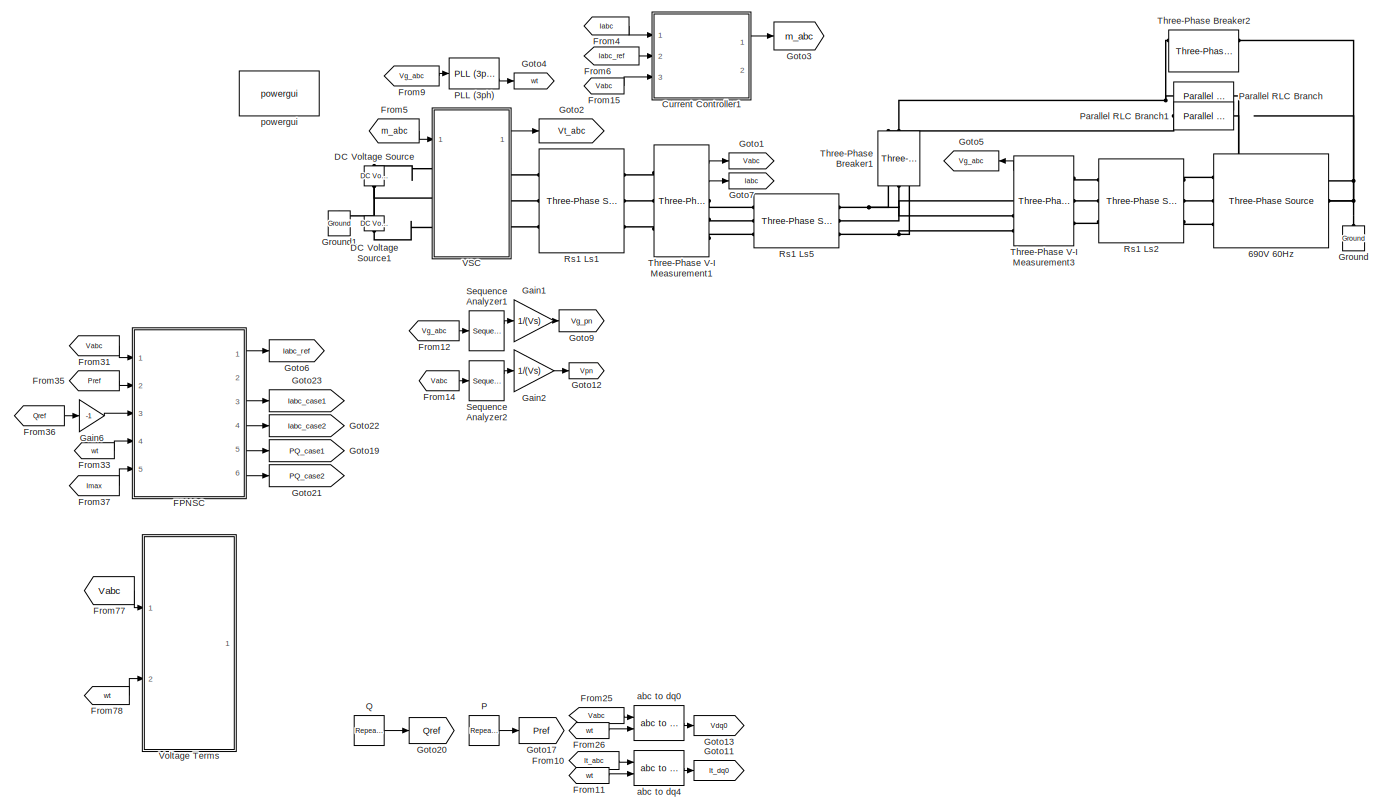
[diagram: root canvas - part 1/1, most of the canvas]
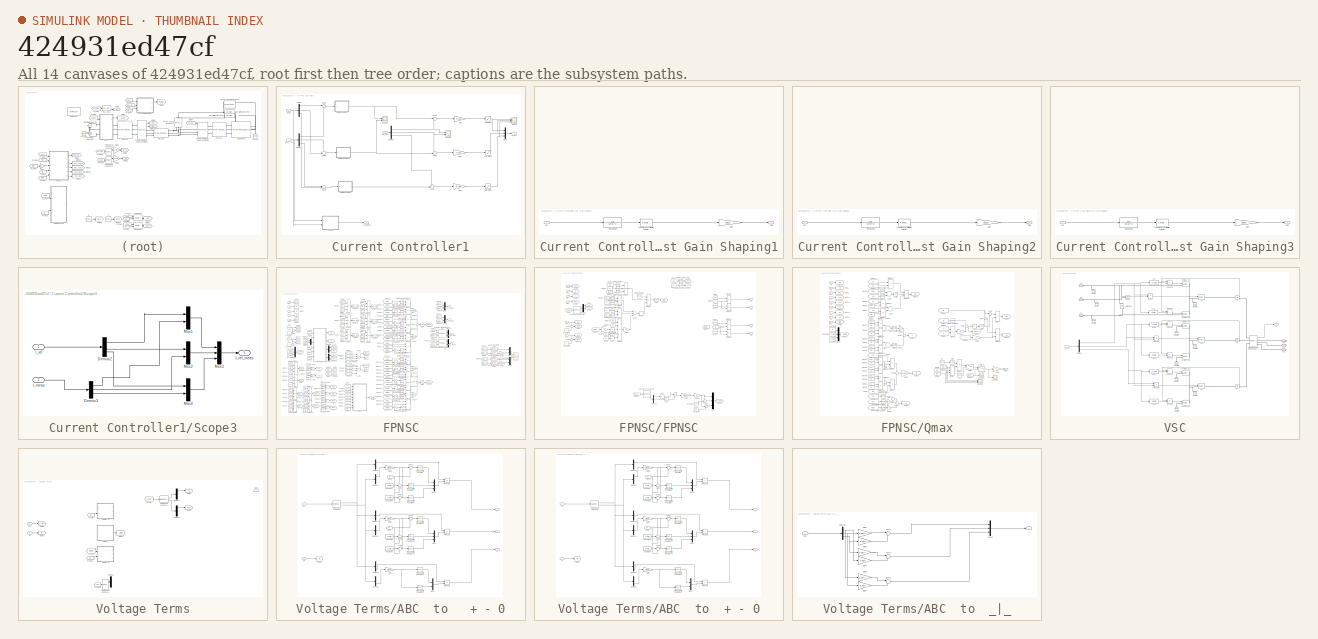
[diagram: thumbnail index - all 14 canvases of the model, root first then tree order]
MODEL slx_424931ed47cf
KIND model
CONFIG InitFcn = t_Pref1=0.07; Pref1=10e5;\nt_Pref2=0.3;   Pref2=3e5;\n\nt_Qmax1=.12; t_Qmax2=t_Qmax1+.01;\nt_Qref1=0.09; Qref1=7e5;\nt_Qref2=0.5; Qref2=10e5;\n\nt_Imax1=.2; Imax1=1200;\nt_Imax2=.4; Imax2=1500;\n\nt_k1=0.25; k1=.8;\nt_k2=0.35; k2=.2;\nt_h1=0.45; h1=.9;\nt_h2=0.55; h2=.5;\n\nLg=90e-6;\nl=100e-6; r=2e-3;\ntff=10e-6;\nw=2*pi*60;\nz_lead =966.3602;\np_lead =5.6324e+03;\nVdc=10000;\nVs=690;
CONFIG PreLoadFcn = t1=1;
BLOCK [Reference] 690V 60Hz  REF=powerlib/Electrical
Sources/Three-Phase Source
  BaseVoltage = 25e3
  BusType = swing
  Frequency = 60
  Inductance = 1e-10
  InternalConnection = Yn
  PhaseAngle = 0
  Ports = [0, 0, 0, 0, 0, 1, 3]
  Pref = 0
  Qmax = inf
  Qmin = -inf
  Qref = 0
  Resistance = 2e-10
  ShortCircuitLevel = 100e6
  SourceBlock = powerlib/Electrical\nSources/Three-Phase Source
  SourceType = Three-Phase Source
  SpecifyImpedance = off
  Voltage = Vs*sqrt(3)/sqrt(2)
  XRratio = 7
BLOCK [SubSystem] Current Controller1
  Ports = [3, 2]
  RequestExecContextInheritance = off
BLOCK [SubSystem] Current Controller1/1st Gain Shaping1
  Ports = [1, 1]
  RequestExecContextInheritance = off
BLOCK [Gain] Current Controller1/1st Gain Shaping1/Gain
  Gain = 38019
  OutDataTypeStr = Inherit: Inherit via internal rule
  ParamDataTypeStr = Inherit: Inherit via internal rule
  SaturateOnIntegerOverflow = off
BLOCK [Inport] Current Controller1/1st Gain Shaping1/In1
  IconDisplay = Port number
BLOCK [Outport] Current Controller1/1st Gain Shaping1/Out1
  IconDisplay = Port number
BLOCK [TransferFcn] Current Controller1/1st Gain Shaping1/Resonant1
  Denominator = [1 0 (w)^2]
  Numerator = [1 r/l]
BLOCK [Reference] Current Controller1/1st Gain Shaping1/Transfer Fcn (with initial outputs)  REF=simulink_extras/Additional
Linear/Transfer Fcn
(with initial outputs)
  D = [1 30340]
  N = [1 5205]
  Ports = [1, 1]
  SourceBlock = simulink_extras/Additional\nLinear/Transfer Fcn\n(with initial outputs)
  SourceType = Transfer Function with Initial Outputs
  U0 = 0
  Y0 = 0
BLOCK [SubSystem] Current Controller1/1st Gain Shaping2
  Ports = [1, 1]
  RequestExecContextInheritance = off
BLOCK [Gain] Current Controller1/1st Gain Shaping2/Gain
  Gain = 38019
  OutDataTypeStr = Inherit: Inherit via internal rule
  ParamDataTypeStr = Inherit: Inherit via internal rule
  SaturateOnIntegerOverflow = off
BLOCK [Inport] Current Controller1/1st Gain Shaping2/In1
  IconDisplay = Port number
BLOCK [Outport] Current Controller1/1st Gain Shaping2/Out1
  IconDisplay = Port number
BLOCK [TransferFcn] Current Controller1/1st Gain Shaping2/Resonant1
  Denominator = [1 0 (w)^2]
  Numerator = [1 r/l]
BLOCK [Reference] Current Controller1/1st Gain Shaping2/Transfer Fcn (with initial outputs)  REF=simulink_extras/Additional
Linear/Transfer Fcn
(with initial outputs)
  D = [1 30340]
  N = [1 5205]
  Ports = [1, 1]
  SourceBlock = simulink_extras/Additional\nLinear/Transfer Fcn\n(with initial outputs)
  SourceType = Transfer Function with Initial Outputs
  U0 = 0
  Y0 = 0
BLOCK [SubSystem] Current Controller1/1st Gain Shaping3
  Ports = [1, 1]
  RequestExecContextInheritance = off
BLOCK [Gain] Current Controller1/1st Gain Shaping3/Gain
  Gain = 38019
  OutDataTypeStr = Inherit: Inherit via internal rule
  ParamDataTypeStr = Inherit: Inherit via internal rule
  SaturateOnIntegerOverflow = off
BLOCK [Inport] Current Controller1/1st Gain Shaping3/In1
  IconDisplay = Port number
BLOCK [Outport] Current Controller1/1st Gain Shaping3/Out1
  IconDisplay = Port number
BLOCK [TransferFcn] Current Controller1/1st Gain Shaping3/Resonant1
  Denominator = [1 0 (w)^2]
  Numerator = [1 r/l]
BLOCK [Reference] Current Controller1/1st Gain Shaping3/Transfer Fcn (with initial outputs)  REF=simulink_extras/Additional
Linear/Transfer Fcn
(with initial outputs)
  D = [1 30340]
  N = [1 5205]
  Ports = [1, 1]
  SourceBlock = simulink_extras/Additional\nLinear/Transfer Fcn\n(with initial outputs)
  SourceType = Transfer Function with Initial Outputs
  U0 = 0
  Y0 = 0
BLOCK [Demux] Current Controller1/Demux
  DisplayOption = bar
  Outputs = 3
  Ports = [1, 3]
BLOCK [Demux] Current Controller1/Demux1
  DisplayOption = bar
  Outputs = 3
  Ports = [1, 3]
BLOCK [Demux] Current Controller1/Demux2
  DisplayOption = bar
  Outputs = 3
  Ports = [1, 3]
BLOCK [Gain] Current Controller1/Gain
  Gain = 2/Vdc
  OutDataTypeStr = Inherit: Inherit via internal rule
  ParamDataTypeStr = Inherit: Inherit via internal rule
  SaturateOnIntegerOverflow = off
BLOCK [Gain] Current Controller1/Gain1
  Gain = 2/Vdc
  OutDataTypeStr = Inherit: Inherit via internal rule
  ParamDataTypeStr = Inherit: Inherit via internal rule
  SaturateOnIntegerOverflow = off
BLOCK [Gain] Current Controller1/Gain2
  Gain = 2/Vdc
  OutDataTypeStr = Inherit: Inherit via internal rule
  ParamDataTypeStr = Inherit: Inherit via internal rule
  SaturateOnIntegerOverflow = off
BLOCK [Outport] Current Controller1/I_ref_meas
  IconDisplay = Port number
  Port = 2
BLOCK [Inport] Current Controller1/It_abc
  IconDisplay = Port number
BLOCK [Inport] Current Controller1/It_abc_ref
  IconDisplay = Port number
  Port = 2
BLOCK [Mux] Current Controller1/Mux2
  DisplayOption = bar
  Inputs = 3
  Ports = [3, 1]
BLOCK [Saturate] Current Controller1/Saturation
  InputPortMap = u0
  LowerLimit = -1
  Ports = [1, 1]
  UpperLimit = 1
BLOCK [Saturate] Current Controller1/Saturation1
  InputPortMap = u0
  LowerLimit = -1
  Ports = [1, 1]
  UpperLimit = 1
BLOCK [Saturate] Current Controller1/Saturation2
  InputPortMap = u0
  LowerLimit = -1
  Ports = [1, 1]
  UpperLimit = 1
BLOCK [Scope] Current Controller1/Scope
  DataFormat = StructureWithTime
  Decimation = 3
  Floating = off
  LimitDataPoints = off
  NumInputPorts = 3
  Ports = [3]
  SampleTime = 0
  SaveName = ScopeData4
  ShowLegends = off
  YMax = 0.8~0.75~1
  YMin = -0.7~-1~-0.75
  ZoomMode = xonly
BLOCK [Scope] Current Controller1/Scope1
  DataFormat = StructureWithTime
  Decimation = 3
  Floating = off
  LimitDataPoints = off
  NumInputPorts = 2
  Ports = [2]
  SampleTime = 0
  SaveName = ScopeData3
  ShowLegends = off
  YMax = 400~600
  YMin = -1600~-200
  ZoomMode = xonly
BLOCK [Scope] Current Controller1/Scope2
  DataFormat = StructureWithTime
  Decimation = 3
  Floating = off
  LimitDataPoints = off
  NumInputPorts = 2
  Ports = [2]
  SampleTime = 0
  SaveName = ScopeData5
  ShowLegends = off
  YMax = 400~400
  YMin = -400~-450
  ZoomMode = xonly
BLOCK [SubSystem] Current Controller1/Scope3
  Ports = [2, 1]
  RequestExecContextInheritance = off
BLOCK [Demux] Current Controller1/Scope3/Demux2
  DisplayOption = bar
  Outputs = 3
  Ports = [1, 3]
BLOCK [Demux] Current Controller1/Scope3/Demux3
  DisplayOption = bar
  Outputs = 3
  Ports = [1, 3]
BLOCK [Inport] Current Controller1/Scope3/I_meas
  IconDisplay = Port number
  Port = 2
BLOCK [Inport] Current Controller1/Scope3/I_ref
  IconDisplay = Port number
BLOCK [Outport] Current Controller1/Scope3/I_ref_meas
  IconDisplay = Port number
BLOCK [Mux] Current Controller1/Scope3/Mux1
  DisplayOption = bar
  Inputs = 2
  Ports = [2, 1]
BLOCK [Mux] Current Controller1/Scope3/Mux2
  DisplayOption = bar
  Inputs = 2
  Ports = [2, 1]
BLOCK [Mux] Current Controller1/Scope3/Mux3
  DisplayOption = bar
  Inputs = 3
  Ports = [3, 1]
BLOCK [Mux] Current Controller1/Scope3/Mux4
  DisplayOption = bar
  Inputs = 2
  Ports = [2, 1]
BLOCK [Sum] Current Controller1/Sum1
  IconShape = round
  InputSameDT = off
  Inputs = +-|
  OutDataTypeStr = Inherit: Inherit via internal rule
  Ports = [2, 1]
  SaturateOnIntegerOverflow = off
BLOCK [Sum] Current Controller1/Sum2
  IconShape = round
  InputSameDT = off
  Inputs = ++|
  OutDataTypeStr = Inherit: Inherit via internal rule
  Ports = [2, 1]
  SaturateOnIntegerOverflow = off
BLOCK [Sum] Current Controller1/Sum4
  IconShape = round
  InputSameDT = off
  Inputs = |-+
  OutDataTypeStr = Inherit: Inherit via internal rule
  Ports = [2, 1]
  SaturateOnIntegerOverflow = off
BLOCK [Sum] Current Controller1/Sum6
  IconShape = round
  InputSameDT = off
  Inputs = +-|
  OutDataTypeStr = Inherit: Inherit via internal rule
  Ports = [2, 1]
  SaturateOnIntegerOverflow = off
BLOCK [Sum] Current Controller1/Sum8
  IconShape = round
  InputSameDT = off
  Inputs = |++
  OutDataTypeStr = Inherit: Inherit via internal rule
  Ports = [2, 1]
  SaturateOnIntegerOverflow = off
BLOCK [Sum] Current Controller1/Sum9
  IconShape = round
  InputSameDT = off
  Inputs = ++|
  OutDataTypeStr = Inherit: Inherit via internal rule
  Ports = [2, 1]
  SaturateOnIntegerOverflow = off
BLOCK [Inport] Current Controller1/Vs_abc
  IconDisplay = Port number
  Port = 3
BLOCK [Outport] Current Controller1/m_abc
  IconDisplay = Port number
BLOCK [Reference] DC Voltage Source  REF=powerlib/Electrical
Sources/DC Voltage Source
  Amplitude = Vdc/2
  Measurements = None
  Ports = [0, 0, 0, 0, 0, 1, 1]
  SourceBlock = powerlib/Electrical\nSources/DC Voltage Source
  SourceType = DC Voltage Source
BLOCK [Reference] DC Voltage Source1  REF=powerlib/Electrical
Sources/DC Voltage Source
  Amplitude = Vdc/2
  Measurements = None
  Ports = [0, 0, 0, 0, 0, 1, 1]
  SourceBlock = powerlib/Electrical\nSources/DC Voltage Source
  SourceType = DC Voltage Source
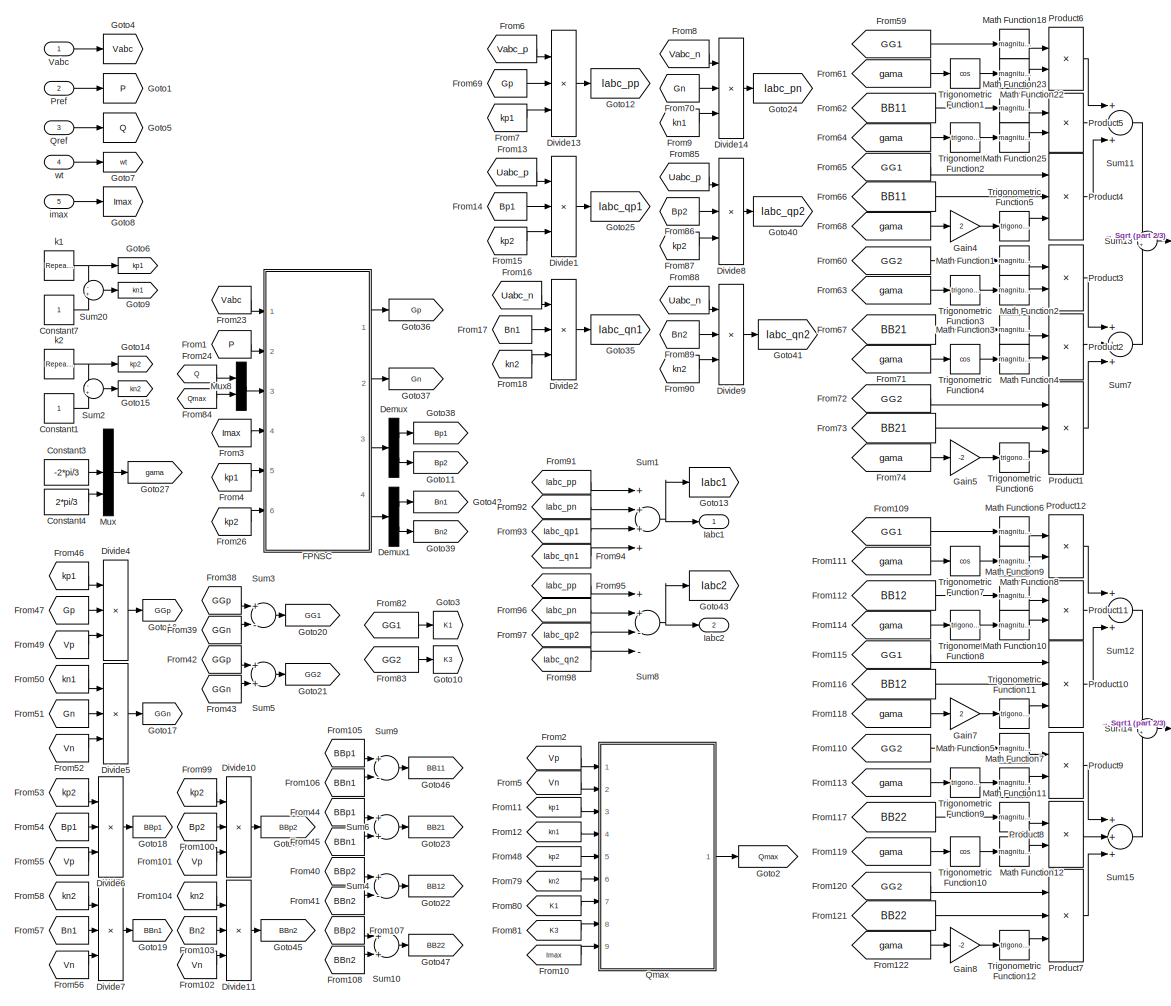
[diagram: FPNSC - part 1/3, left side, full height]
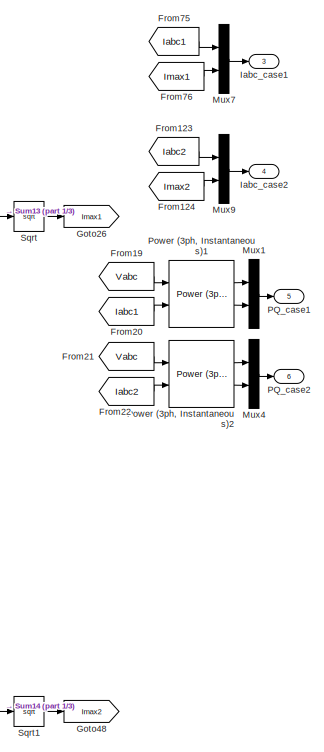
[diagram: FPNSC - part 2/3, central region]
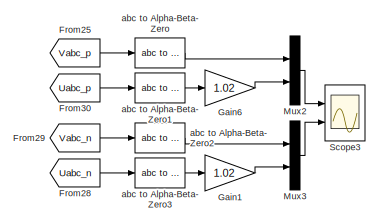
[diagram: FPNSC - part 3/3, middle right region]
BLOCK [SubSystem] FPNSC
  Ports = [5, 6]
  RequestExecContextInheritance = off
BLOCK [Constant] FPNSC/Constant1
BLOCK [Constant] FPNSC/Constant3
  Value = -2*pi/3
BLOCK [Constant] FPNSC/Constant4
  Value = 2*pi/3
BLOCK [Constant] FPNSC/Constant7
BLOCK [Demux] FPNSC/Demux
  DisplayOption = bar
  Outputs = 2
  Ports = [1, 2]
BLOCK [Demux] FPNSC/Demux1
  DisplayOption = bar
  Outputs = 2
  Ports = [1, 2]
BLOCK [Product] FPNSC/Divide1
  InputSameDT = off
  Inputs = ***
  OutDataTypeStr = Inherit: Inherit via internal rule
  Ports = [3, 1]
  RndMeth = Floor
  SaturateOnIntegerOverflow = off
BLOCK [Product] FPNSC/Divide10
  InputSameDT = off
  Inputs = ***
  OutDataTypeStr = Inherit: Inherit via internal rule
  Ports = [3, 1]
  RndMeth = Floor
  SaturateOnIntegerOverflow = off
BLOCK [Product] FPNSC/Divide11
  InputSameDT = off
  Inputs = ***
  OutDataTypeStr = Inherit: Inherit via internal rule
  Ports = [3, 1]
  RndMeth = Floor
  SaturateOnIntegerOverflow = off
BLOCK [Product] FPNSC/Divide13
  InputSameDT = off
  Inputs = ***
  OutDataTypeStr = Inherit: Inherit via internal rule
  Ports = [3, 1]
  RndMeth = Floor
  SaturateOnIntegerOverflow = off
BLOCK [Product] FPNSC/Divide14
  InputSameDT = off
  Inputs = ***
  OutDataTypeStr = Inherit: Inherit via internal rule
  Ports = [3, 1]
  RndMeth = Floor
  SaturateOnIntegerOverflow = off
BLOCK [Product] FPNSC/Divide2
  InputSameDT = off
  Inputs = ***
  OutDataTypeStr = Inherit: Inherit via internal rule
  Ports = [3, 1]
  RndMeth = Floor
  SaturateOnIntegerOverflow = off
BLOCK [Product] FPNSC/Divide4
  InputSameDT = off
  Inputs = ***
  OutDataTypeStr = Inherit: Inherit via internal rule
  Ports = [3, 1]
  RndMeth = Floor
  SaturateOnIntegerOverflow = off
BLOCK [Product] FPNSC/Divide5
  InputSameDT = off
  Inputs = ***
  OutDataTypeStr = Inherit: Inherit via internal rule
  Ports = [3, 1]
  RndMeth = Floor
  SaturateOnIntegerOverflow = off
BLOCK [Product] FPNSC/Divide6
  InputSameDT = off
  Inputs = ***
  OutDataTypeStr = Inherit: Inherit via internal rule
  Ports = [3, 1]
  RndMeth = Floor
  SaturateOnIntegerOverflow = off
BLOCK [Product] FPNSC/Divide7
  InputSameDT = off
  Inputs = ***
  OutDataTypeStr = Inherit: Inherit via internal rule
  Ports = [3, 1]
  RndMeth = Floor
  SaturateOnIntegerOverflow = off
BLOCK [Product] FPNSC/Divide8
  InputSameDT = off
  Inputs = ***
  OutDataTypeStr = Inherit: Inherit via internal rule
  Ports = [3, 1]
  RndMeth = Floor
  SaturateOnIntegerOverflow = off
BLOCK [Product] FPNSC/Divide9
  InputSameDT = off
  Inputs = ***
  OutDataTypeStr = Inherit: Inherit via internal rule
  Ports = [3, 1]
  RndMeth = Floor
  SaturateOnIntegerOverflow = off
BLOCK [SubSystem] FPNSC/FPNSC
  Ports = [6, 4]
  RequestExecContextInheritance = off
BLOCK [Abs] FPNSC/FPNSC/Abs
  SaturateOnIntegerOverflow = off
BLOCK [Abs] FPNSC/FPNSC/Abs1
  SaturateOnIntegerOverflow = off
BLOCK [Abs] FPNSC/FPNSC/Abs2
  SaturateOnIntegerOverflow = off
BLOCK [Abs] FPNSC/FPNSC/Abs3
  SaturateOnIntegerOverflow = off
BLOCK [Outport] FPNSC/FPNSC/Bn
  IconDisplay = Port number
  Port = 4
BLOCK [Outport] FPNSC/FPNSC/Bp
  IconDisplay = Port number
  Port = 3
BLOCK [Constant] FPNSC/FPNSC/Constant1
BLOCK [Constant] FPNSC/FPNSC/Constant2
BLOCK [Constant] FPNSC/FPNSC/Constant3
  Value = pi/3
BLOCK [Constant] FPNSC/FPNSC/Constant4
  Value = pi/3
BLOCK [Demux] FPNSC/FPNSC/Demux2
  DisplayOption = bar
  Outputs = 3
  Ports = [1, 3]
BLOCK [Demux] FPNSC/FPNSC/Demux3
  DisplayOption = bar
  Outputs = 3
  Ports = [1, 3]
BLOCK [Product] FPNSC/FPNSC/Divide10
  InputSameDT = off
  Inputs = /*
  OutDataTypeStr = Inherit: Inherit via internal rule
  Ports = [2, 1]
  RndMeth = Floor
  SaturateOnIntegerOverflow = off
BLOCK [Product] FPNSC/FPNSC/Divide11
  InputSameDT = off
  Inputs = /*
  OutDataTypeStr = Inherit: Inherit via internal rule
  Ports = [2, 1]
  RndMeth = Floor
  SaturateOnIntegerOverflow = off
BLOCK [Product] FPNSC/FPNSC/Divide12
  InputSameDT = off
  Inputs = /*
  OutDataTypeStr = Inherit: Inherit via internal rule
  Ports = [2, 1]
  RndMeth = Floor
  SaturateOnIntegerOverflow = off
BLOCK [Product] FPNSC/FPNSC/Divide3
  InputSameDT = off
  Inputs = ***
  OutDataTypeStr = Inherit: Inherit via internal rule
  Ports = [3, 1]
  RndMeth = Floor
  SaturateOnIntegerOverflow = off
BLOCK [Product] FPNSC/FPNSC/Divide4
  InputSameDT = off
  Inputs = **/
  OutDataTypeStr = Inherit: Inherit via internal rule
  Ports = [3, 1]
  RndMeth = Floor
  SaturateOnIntegerOverflow = off
BLOCK [Product] FPNSC/FPNSC/Divide6
  InputSameDT = off
  Inputs = **
  OutDataTypeStr = Inherit: Inherit via internal rule
  Ports = [2, 1]
  RndMeth = Floor
  SaturateOnIntegerOverflow = off
BLOCK [Product] FPNSC/FPNSC/Divide7
  InputSameDT = off
  Inputs = **
  OutDataTypeStr = Inherit: Inherit via internal rule
  Ports = [2, 1]
  RndMeth = Floor
  SaturateOnIntegerOverflow = off
BLOCK [Product] FPNSC/FPNSC/Divide8
  InputSameDT = off
  Inputs = *****
  OutDataTypeStr = Inherit: Inherit via internal rule
  Ports = [5, 1]
  RndMeth = Floor
  SaturateOnIntegerOverflow = off
BLOCK [Product] FPNSC/FPNSC/Divide9
  InputSameDT = off
  Inputs = /*
  OutDataTypeStr = Inherit: Inherit via internal rule
  Ports = [2, 1]
  RndMeth = Floor
  SaturateOnIntegerOverflow = off
BLOCK [From] FPNSC/FPNSC/From1
  GotoTag = Vp2
BLOCK [From] FPNSC/FPNSC/From10
  GotoTag = Q
BLOCK [From] FPNSC/FPNSC/From11
  GotoTag = Vp
BLOCK [From] FPNSC/FPNSC/From12
  GotoTag = Vn
BLOCK [From] FPNSC/FPNSC/From13
  GotoTag = Vabc
BLOCK [From] FPNSC/FPNSC/From14
  GotoTag = Vp
BLOCK [From] FPNSC/FPNSC/From15
  GotoTag = Vn
BLOCK [From] FPNSC/FPNSC/From16
  GotoTag = Imax
BLOCK [From] FPNSC/FPNSC/From17
  GotoTag = Vn2
BLOCK [From] FPNSC/FPNSC/From18
  GotoTag = Kp
BLOCK [From] FPNSC/FPNSC/From19
  GotoTag = Kn
BLOCK [From] FPNSC/FPNSC/From2
  GotoTag = Vp
BLOCK [From] FPNSC/FPNSC/From20
  GotoTag = Kp
BLOCK [From] FPNSC/FPNSC/From21
  GotoTag = Kn
BLOCK [From] FPNSC/FPNSC/From22
  GotoTag = Vp2
BLOCK [From] FPNSC/FPNSC/From23
  GotoTag = Vn2
BLOCK [From] FPNSC/FPNSC/From3
  GotoTag = Vn
BLOCK [From] FPNSC/FPNSC/From4
  GotoTag = gama
BLOCK [From] FPNSC/FPNSC/From5
  GotoTag = Vn
BLOCK [From] FPNSC/FPNSC/From6
  GotoTag = Vp
BLOCK [From] FPNSC/FPNSC/From7
  GotoTag = Qmax
BLOCK [From] FPNSC/FPNSC/From8
  GotoTag = Vabc
BLOCK [From] FPNSC/FPNSC/From9
  GotoTag = P
BLOCK [Gain] FPNSC/FPNSC/Gain3
  Gain = pi/180
  OutDataTypeStr = Inherit: Inherit via internal rule
  ParamDataTypeStr = Inherit: Inherit via internal rule
  SaturateOnIntegerOverflow = off
BLOCK [Gain] FPNSC/FPNSC/Gain4
  Gain = .5
  OutDataTypeStr = Inherit: Inherit via internal rule
  ParamDataTypeStr = Inherit: Inherit via internal rule
  SaturateOnIntegerOverflow = off
BLOCK [Gain] FPNSC/FPNSC/Gain5
  Gain = 2
  OutDataTypeStr = Inherit: Inherit via internal rule
  ParamDataTypeStr = Inherit: Inherit via internal rule
  SaturateOnIntegerOverflow = off
BLOCK [Gain] FPNSC/FPNSC/Gain6
  Gain = -2
  OutDataTypeStr = Inherit: Inherit via internal rule
  ParamDataTypeStr = Inherit: Inherit via internal rule
  SaturateOnIntegerOverflow = off
BLOCK [Outport] FPNSC/FPNSC/Gn
  IconDisplay = Port number
  Port = 2
BLOCK [Goto] FPNSC/FPNSC/Goto1
  GotoTag = Vp2
BLOCK [Goto] FPNSC/FPNSC/Goto10
  GotoTag = Qmax
BLOCK [Goto] FPNSC/FPNSC/Goto11
  GotoTag = P
BLOCK [Goto] FPNSC/FPNSC/Goto12
  GotoTag = gama
BLOCK [Goto] FPNSC/FPNSC/Goto13
  GotoTag = Kp2
BLOCK [Goto] FPNSC/FPNSC/Goto14
  GotoTag = Kn2
BLOCK [Goto] FPNSC/FPNSC/Goto2
  GotoTag = Vn2
BLOCK [Goto] FPNSC/FPNSC/Goto3
  GotoTag = Q
BLOCK [Goto] FPNSC/FPNSC/Goto4
  GotoTag = Vp
BLOCK [Goto] FPNSC/FPNSC/Goto5
  GotoTag = Vn
BLOCK [Goto] FPNSC/FPNSC/Goto6
  GotoTag = Vabc
BLOCK [Goto] FPNSC/FPNSC/Goto7
  GotoTag = Imax
BLOCK [Goto] FPNSC/FPNSC/Goto8
  GotoTag = Kp1
BLOCK [Goto] FPNSC/FPNSC/Goto9
  GotoTag = Kn1
BLOCK [Outport] FPNSC/FPNSC/Gp
  IconDisplay = Port number
BLOCK [Inport] FPNSC/FPNSC/Imax
  IconDisplay = Port number
  Port = 4
BLOCK [Inport] FPNSC/FPNSC/Kp1
  IconDisplay = Port number
  Port = 5
BLOCK [Inport] FPNSC/FPNSC/Kp2
  IconDisplay = Port number
  Port = 6
BLOCK [Math] FPNSC/FPNSC/Math Function10
  Operator = magnitude^2
  Ports = [1, 1]
BLOCK [Math] FPNSC/FPNSC/Math Function2
  Operator = magnitude^2
  Ports = [1, 1]
BLOCK [Math] FPNSC/FPNSC/Math Function3
  Operator = magnitude^2
  Ports = [1, 1]
BLOCK [Math] FPNSC/FPNSC/Math Function4
  Operator = magnitude^2
  Ports = [1, 1]
BLOCK [Math] FPNSC/FPNSC/Math Function5
  Operator = magnitude^2
  Ports = [1, 1]
BLOCK [Math] FPNSC/FPNSC/Math Function6
  Operator = magnitude^2
  Ports = [1, 1]
BLOCK [Math] FPNSC/FPNSC/Math Function7
  Operator = magnitude^2
  Ports = [1, 1]
BLOCK [Math] FPNSC/FPNSC/Math Function8
  Operator = magnitude^2
  Ports = [1, 1]
BLOCK [Math] FPNSC/FPNSC/Math Function9
  Operator = magnitude^2
  Ports = [1, 1]
BLOCK [MinMax] FPNSC/FPNSC/MinMax
  Function = max
  InputSameDT = off
  Ports = [1, 1]
  SaturateOnIntegerOverflow = off
BLOCK [Mux] FPNSC/FPNSC/Mux
  DisplayOption = bar
  Inputs = 3
  Ports = [3, 1]
BLOCK [Inport] FPNSC/FPNSC/Pref
  IconDisplay = Port number
  Port = 2
BLOCK [Reference] FPNSC/FPNSC/Qmax Indicator  REF=simulink/Sources/Repeating
Sequence
  Ports = [0, 1]
  SourceBlock = simulink/Sources/Repeating\nSequence
  SourceType = Repeating table
  rep_seq_t = [0 t_Qmax1 t_Qmax2 10]
  rep_seq_y = [0 0 1 1]
BLOCK [Inport] FPNSC/FPNSC/Qref
  IconDisplay = Port number
  Port = 3
BLOCK [Reference] FPNSC/FPNSC/Sequence Analyzer1  REF=powerlib_meascontrol/Measurements/Sequence Analyzer
  Freq = 60
  InInit = [1, 0]
  Ports = [1, 2]
  SourceBlock = powerlib_meascontrol/Measurements/Sequence Analyzer
  SourceType = Sequence Analyzer
  Ts = 0
  n = 1
  seq = Positive Negative Zero
BLOCK [Reference] FPNSC/FPNSC/Sequence Analyzer2  REF=powerlib_meascontrol/Measurements/Sequence Analyzer
  Freq = 60
  InInit = [1, 0]
  Ports = [1, 2]
  SourceBlock = powerlib_meascontrol/Measurements/Sequence Analyzer
  SourceType = Sequence Analyzer
  Ts = 0
  n = 1
  seq = Positive Negative Zero
BLOCK [Sqrt] FPNSC/FPNSC/Sqrt
BLOCK [Sum] FPNSC/FPNSC/Sum1
  IconShape = round
  InputSameDT = off
  Inputs = -+
  OutDataTypeStr = Inherit: Inherit via internal rule
  Ports = [2, 1]
  SaturateOnIntegerOverflow = off
BLOCK [Sum] FPNSC/FPNSC/Sum2
  IconShape = round
  InputSameDT = off
  Inputs = -+
  OutDataTypeStr = Inherit: Inherit via internal rule
  Ports = [2, 1]
  SaturateOnIntegerOverflow = off
BLOCK [Sum] FPNSC/FPNSC/Sum3
  InputSameDT = off
  Inputs = +++
  OutDataTypeStr = Inherit: Inherit via internal rule
  Ports = [3, 1]
  SaturateOnIntegerOverflow = off
BLOCK [Sum] FPNSC/FPNSC/Sum5
  IconShape = round
  InputSameDT = off
  Inputs = +-
  OutDataTypeStr = Inherit: Inherit via internal rule
  Ports = [2, 1]
  SaturateOnIntegerOverflow = off
BLOCK [Sum] FPNSC/FPNSC/Sum6
  IconShape = round
  InputSameDT = off
  OutDataTypeStr = Inherit: Inherit via internal rule
  Ports = [2, 1]
  SaturateOnIntegerOverflow = off
BLOCK [Sum] FPNSC/FPNSC/Sum7
  IconShape = round
  InputSameDT = off
  Inputs = +-
  OutDataTypeStr = Inherit: Inherit via internal rule
  Ports = [2, 1]
  SaturateOnIntegerOverflow = off
BLOCK [Trigonometry] FPNSC/FPNSC/Trigonometric Function
  Operator = cos
  Ports = [1, 1]
BLOCK [Inport] FPNSC/FPNSC/Vabc
  IconDisplay = Port number
BLOCK [From] FPNSC/From1
  GotoTag = P
BLOCK [From] FPNSC/From10
  GotoTag = Imax
BLOCK [From] FPNSC/From100
  GotoTag = Bp2
BLOCK [From] FPNSC/From101
  GotoTag = Vp
BLOCK [From] FPNSC/From102
  GotoTag = Vn
BLOCK [From] FPNSC/From103
  GotoTag = Bn2
BLOCK [From] FPNSC/From104
  GotoTag = kn2
BLOCK [From] FPNSC/From105
  GotoTag = BBp1
BLOCK [From] FPNSC/From106
  GotoTag = BBn1
BLOCK [From] FPNSC/From107
  GotoTag = BBp2
BLOCK [From] FPNSC/From108
  GotoTag = BBn2
BLOCK [From] FPNSC/From109
  GotoTag = GG1
BLOCK [From] FPNSC/From11
  GotoTag = kp1
BLOCK [From] FPNSC/From110
  GotoTag = GG2
BLOCK [From] FPNSC/From111
  GotoTag = gama
BLOCK [From] FPNSC/From112
  GotoTag = BB12
BLOCK [From] FPNSC/From113
  GotoTag = gama
BLOCK [From] FPNSC/From114
  GotoTag = gama
BLOCK [From] FPNSC/From115
  GotoTag = GG1
BLOCK [From] FPNSC/From116
  GotoTag = BB12
BLOCK [From] FPNSC/From117
  GotoTag = BB22
BLOCK [From] FPNSC/From118
  GotoTag = gama
BLOCK [From] FPNSC/From119
  GotoTag = gama
BLOCK [From] FPNSC/From12
  GotoTag = kn1
BLOCK [From] FPNSC/From120
  GotoTag = GG2
BLOCK [From] FPNSC/From121
  GotoTag = BB22
BLOCK [From] FPNSC/From122
  GotoTag = gama
BLOCK [From] FPNSC/From123
  GotoTag = Iabc2
BLOCK [From] FPNSC/From124
  GotoTag = Imax2
BLOCK [From] FPNSC/From13
  GotoTag = Uabc_p
BLOCK [From] FPNSC/From14
  GotoTag = Bp1
BLOCK [From] FPNSC/From15
  GotoTag = kp2
BLOCK [From] FPNSC/From16
  GotoTag = Uabc_n
BLOCK [From] FPNSC/From17
  GotoTag = Bn1
BLOCK [From] FPNSC/From18
  GotoTag = kn2
BLOCK [From] FPNSC/From19
  GotoTag = Vabc
BLOCK [From] FPNSC/From2
  GotoTag = Vp
BLOCK [From] FPNSC/From20
  GotoTag = Iabc1
BLOCK [From] FPNSC/From21
  GotoTag = Vabc
BLOCK [From] FPNSC/From22
  GotoTag = Iabc2
BLOCK [From] FPNSC/From23
  GotoTag = Vabc
BLOCK [From] FPNSC/From24
  GotoTag = Q
BLOCK [From] FPNSC/From25
  GotoTag = Vabc_p
BLOCK [From] FPNSC/From26
  GotoTag = kp2
BLOCK [From] FPNSC/From28
  GotoTag = Uabc_n
BLOCK [From] FPNSC/From29
  GotoTag = Vabc_n
BLOCK [From] FPNSC/From3
  GotoTag = Imax
BLOCK [From] FPNSC/From30
  GotoTag = Uabc_p
BLOCK [From] FPNSC/From38
  GotoTag = GGp
BLOCK [From] FPNSC/From39
  GotoTag = GGn
BLOCK [From] FPNSC/From4
  GotoTag = kp1
BLOCK [From] FPNSC/From40
  GotoTag = BBp2
BLOCK [From] FPNSC/From41
  GotoTag = BBn2
BLOCK [From] FPNSC/From42
  GotoTag = GGp
BLOCK [From] FPNSC/From43
  GotoTag = GGn
BLOCK [From] FPNSC/From44
  GotoTag = BBp1
BLOCK [From] FPNSC/From45
  GotoTag = BBn1
BLOCK [From] FPNSC/From46
  GotoTag = kp1
BLOCK [From] FPNSC/From47
  GotoTag = Gp
BLOCK [From] FPNSC/From48
  GotoTag = kp2
BLOCK [From] FPNSC/From49
  GotoTag = Vp
BLOCK [From] FPNSC/From5
  GotoTag = Vn
BLOCK [From] FPNSC/From50
  GotoTag = kn1
BLOCK [From] FPNSC/From51
  GotoTag = Gn
BLOCK [From] FPNSC/From52
  GotoTag = Vn
BLOCK [From] FPNSC/From53
  GotoTag = kp2
BLOCK [From] FPNSC/From54
  GotoTag = Bp1
BLOCK [From] FPNSC/From55
  GotoTag = Vp
BLOCK [From] FPNSC/From56
  GotoTag = Vn
BLOCK [From] FPNSC/From57
  GotoTag = Bn1
BLOCK [From] FPNSC/From58
  GotoTag = kn2
BLOCK [From] FPNSC/From59
  GotoTag = GG1
BLOCK [From] FPNSC/From6
  GotoTag = Vabc_p
BLOCK [From] FPNSC/From60
  GotoTag = GG2
BLOCK [From] FPNSC/From61
  GotoTag = gama
BLOCK [From] FPNSC/From62
  GotoTag = BB11
BLOCK [From] FPNSC/From63
  GotoTag = gama
BLOCK [From] FPNSC/From64
  GotoTag = gama
BLOCK [From] FPNSC/From65
  GotoTag = GG1
BLOCK [From] FPNSC/From66
  GotoTag = BB11
BLOCK [From] FPNSC/From67
  GotoTag = BB21
BLOCK [From] FPNSC/From68
  GotoTag = gama
BLOCK [From] FPNSC/From69
  GotoTag = Gp
BLOCK [From] FPNSC/From7
  GotoTag = kp1
BLOCK [From] FPNSC/From70
  GotoTag = Gn
BLOCK [From] FPNSC/From71
  GotoTag = gama
BLOCK [From] FPNSC/From72
  GotoTag = GG2
BLOCK [From] FPNSC/From73
  GotoTag = BB21
BLOCK [From] FPNSC/From74
  GotoTag = gama
BLOCK [From] FPNSC/From75
  GotoTag = Iabc1
BLOCK [From] FPNSC/From76
  GotoTag = Imax1
BLOCK [From] FPNSC/From79
  GotoTag = kn2
BLOCK [From] FPNSC/From8
  GotoTag = Vabc_n
BLOCK [From] FPNSC/From80
  GotoTag = K1
BLOCK [From] FPNSC/From81
  GotoTag = K3
BLOCK [From] FPNSC/From82
  GotoTag = GG1
BLOCK [From] FPNSC/From83
  GotoTag = GG2
BLOCK [From] FPNSC/From84
  GotoTag = Qmax
BLOCK [From] FPNSC/From85
  GotoTag = Uabc_p
BLOCK [From] FPNSC/From86
  GotoTag = Bp2
BLOCK [From] FPNSC/From87
  GotoTag = kp2
BLOCK [From] FPNSC/From88
  GotoTag = Uabc_n
BLOCK [From] FPNSC/From89
  GotoTag = Bn2
BLOCK [From] FPNSC/From9
  GotoTag = kn1
BLOCK [From] FPNSC/From90
  GotoTag = kn2
BLOCK [From] FPNSC/From91
  GotoTag = Iabc_pp
BLOCK [From] FPNSC/From92
  GotoTag = Iabc_pn
BLOCK [From] FPNSC/From93
  GotoTag = Iabc_qp1
BLOCK [From] FPNSC/From94
  GotoTag = Iabc_qn1
BLOCK [From] FPNSC/From95
  GotoTag = Iabc_pp
BLOCK [From] FPNSC/From96
  GotoTag = Iabc_pn
BLOCK [From] FPNSC/From97
  GotoTag = Iabc_qp2
BLOCK [From] FPNSC/From98
  GotoTag = Iabc_qn2
BLOCK [From] FPNSC/From99
  GotoTag = kp2
BLOCK [Gain] FPNSC/Gain1
  Gain = 1.02
  OutDataTypeStr = Inherit: Inherit via internal rule
  ParamDataTypeStr = Inherit: Inherit via internal rule
  SaturateOnIntegerOverflow = off
BLOCK [Gain] FPNSC/Gain4
  Gain = 2
  OutDataTypeStr = Inherit: Inherit via internal rule
  ParamDataTypeStr = Inherit: Inherit via internal rule
  SaturateOnIntegerOverflow = off
BLOCK [Gain] FPNSC/Gain5
  Gain = -2
  OutDataTypeStr = Inherit: Inherit via internal rule
  ParamDataTypeStr = Inherit: Inherit via internal rule
  SaturateOnIntegerOverflow = off
BLOCK [Gain] FPNSC/Gain6
  Gain = 1.02
  OutDataTypeStr = Inherit: Inherit via internal rule
  ParamDataTypeStr = Inherit: Inherit via internal rule
  SaturateOnIntegerOverflow = off
BLOCK [Gain] FPNSC/Gain7
  Gain = 2
  OutDataTypeStr = Inherit: Inherit via internal rule
  ParamDataTypeStr = Inherit: Inherit via internal rule
  SaturateOnIntegerOverflow = off
BLOCK [Gain] FPNSC/Gain8
  Gain = -2
  OutDataTypeStr = Inherit: Inherit via internal rule
  ParamDataTypeStr = Inherit: Inherit via internal rule
  SaturateOnIntegerOverflow = off
BLOCK [Goto] FPNSC/Goto1
  GotoTag = P
BLOCK [Goto] FPNSC/Goto10
  GotoTag = K3
BLOCK [Goto] FPNSC/Goto11
  GotoTag = Bp2
BLOCK [Goto] FPNSC/Goto12
  GotoTag = Iabc_pp
BLOCK [Goto] FPNSC/Goto13
  GotoTag = Iabc1
BLOCK [Goto] FPNSC/Goto14
  GotoTag = kp2
BLOCK [Goto] FPNSC/Goto15
  GotoTag = kn2
BLOCK [Goto] FPNSC/Goto16
  GotoTag = GGp
BLOCK [Goto] FPNSC/Goto17
  GotoTag = GGn
BLOCK [Goto] FPNSC/Goto18
  GotoTag = BBp1
BLOCK [Goto] FPNSC/Goto19
  GotoTag = BBn1
BLOCK [Goto] FPNSC/Goto2
  GotoTag = Qmax
BLOCK [Goto] FPNSC/Goto20
  GotoTag = GG1
BLOCK [Goto] FPNSC/Goto21
  GotoTag = GG2
BLOCK [Goto] FPNSC/Goto22
  GotoTag = BB12
BLOCK [Goto] FPNSC/Goto23
  GotoTag = BB21
BLOCK [Goto] FPNSC/Goto24
  GotoTag = Iabc_pn
BLOCK [Goto] FPNSC/Goto25
  GotoTag = Iabc_qp1
BLOCK [Goto] FPNSC/Goto26
  GotoTag = Imax1
BLOCK [Goto] FPNSC/Goto27
  GotoTag = gama
BLOCK [Goto] FPNSC/Goto3
  GotoTag = K1
BLOCK [Goto] FPNSC/Goto35
  GotoTag = Iabc_qn1
BLOCK [Goto] FPNSC/Goto36
  GotoTag = Gp
BLOCK [Goto] FPNSC/Goto37
  GotoTag = Gn
BLOCK [Goto] FPNSC/Goto38
  GotoTag = Bp1
BLOCK [Goto] FPNSC/Goto39
  GotoTag = Bn2
BLOCK [Goto] FPNSC/Goto4
  GotoTag = Vabc
BLOCK [Goto] FPNSC/Goto40
  GotoTag = Iabc_qp2
BLOCK [Goto] FPNSC/Goto41
  GotoTag = Iabc_qn2
BLOCK [Goto] FPNSC/Goto42
  GotoTag = Bn1
BLOCK [Goto] FPNSC/Goto43
  GotoTag = Iabc2
BLOCK [Goto] FPNSC/Goto44
  GotoTag = BBp2
BLOCK [Goto] FPNSC/Goto45
  GotoTag = BBn2
BLOCK [Goto] FPNSC/Goto46
  GotoTag = BB11
BLOCK [Goto] FPNSC/Goto47
  GotoTag = BB22
BLOCK [Goto] FPNSC/Goto48
  GotoTag = Imax2
BLOCK [Goto] FPNSC/Goto5
  GotoTag = Q
BLOCK [Goto] FPNSC/Goto6
  GotoTag = kp1
BLOCK [Goto] FPNSC/Goto7
  GotoTag = wt
BLOCK [Goto] FPNSC/Goto8
  GotoTag = Imax
BLOCK [Goto] FPNSC/Goto9
  GotoTag = kn1
BLOCK [Outport] FPNSC/Iabc1
  IconDisplay = Port number
BLOCK [Outport] FPNSC/Iabc2
  IconDisplay = Port number
  Port = 2
BLOCK [Outport] FPNSC/Iabc_case1
  IconDisplay = Port number
  Port = 3
BLOCK [Outport] FPNSC/Iabc_case2
  IconDisplay = Port number
  Port = 4
BLOCK [Math] FPNSC/Math Function1
  Operator = magnitude^2
  Ports = [1, 1]
BLOCK [Math] FPNSC/Math Function10
  Operator = magnitude^2
  Ports = [1, 1]
BLOCK [Math] FPNSC/Math Function11
  Operator = magnitude^2
  Ports = [1, 1]
BLOCK [Math] FPNSC/Math Function12
  Operator = magnitude^2
  Ports = [1, 1]
BLOCK [Math] FPNSC/Math Function18
  Operator = magnitude^2
  Ports = [1, 1]
BLOCK [Math] FPNSC/Math Function2
  Operator = magnitude^2
  Ports = [1, 1]
BLOCK [Math] FPNSC/Math Function22
  Operator = magnitude^2
  Ports = [1, 1]
BLOCK [Math] FPNSC/Math Function23
  Operator = magnitude^2
  Ports = [1, 1]
BLOCK [Math] FPNSC/Math Function25
  Operator = magnitude^2
  Ports = [1, 1]
BLOCK [Math] FPNSC/Math Function3
  Operator = magnitude^2
  Ports = [1, 1]
BLOCK [Math] FPNSC/Math Function4
  Operator = magnitude^2
  Ports = [1, 1]
BLOCK [Math] FPNSC/Math Function5
  Operator = magnitude^2
  Ports = [1, 1]
BLOCK [Math] FPNSC/Math Function6
  Operator = magnitude^2
  Ports = [1, 1]
BLOCK [Math] FPNSC/Math Function7
  Operator = magnitude^2
  Ports = [1, 1]
BLOCK [Math] FPNSC/Math Function8
  Operator = magnitude^2
  Ports = [1, 1]
BLOCK [Math] FPNSC/Math Function9
  Operator = magnitude^2
  Ports = [1, 1]
BLOCK [Mux] FPNSC/Mux
  DisplayOption = bar
  Inputs = 3
  Ports = [3, 1]
BLOCK [Mux] FPNSC/Mux1
  DisplayOption = bar
  Inputs = 2
  Ports = [2, 1]
BLOCK [Mux] FPNSC/Mux2
  DisplayOption = bar
  Inputs = 2
  Ports = [2, 1]
BLOCK [Mux] FPNSC/Mux3
  DisplayOption = bar
  Inputs = 2
  Ports = [2, 1]
BLOCK [Mux] FPNSC/Mux4
  DisplayOption = bar
  Inputs = 2
  Ports = [2, 1]
BLOCK [Mux] FPNSC/Mux7
  DisplayOption = bar
  Inputs = 2
  Ports = [2, 1]
BLOCK [Mux] FPNSC/Mux8
  DisplayOption = bar
  Inputs = 2
  Ports = [2, 1]
BLOCK [Mux] FPNSC/Mux9
  DisplayOption = bar
  Inputs = 2
  Ports = [2, 1]
BLOCK [Outport] FPNSC/PQ_case1
  IconDisplay = Port number
  Port = 5
BLOCK [Outport] FPNSC/PQ_case2
  IconDisplay = Port number
  Port = 6
BLOCK [Reference] FPNSC/Power (3ph, Instantaneous)1  REF=powerlib_meascontrol/Measurements/Power
(3ph, Instantaneous)
  Ports = [2, 2]
  SourceBlock = powerlib_meascontrol/Measurements/Power\n(3ph, Instantaneous)
  SourceType = Power (3ph, Instantaneous)
BLOCK [Reference] FPNSC/Power (3ph, Instantaneous)2  REF=powerlib_meascontrol/Measurements/Power
(3ph, Instantaneous)
  Ports = [2, 2]
  SourceBlock = powerlib_meascontrol/Measurements/Power\n(3ph, Instantaneous)
  SourceType = Power (3ph, Instantaneous)
BLOCK [Inport] FPNSC/Pref
  IconDisplay = Port number
  Port = 2
BLOCK [Product] FPNSC/Product1
  InputSameDT = off
  Inputs = 3
  OutDataTypeStr = Inherit: Inherit via internal rule
  Ports = [3, 1]
  RndMeth = Floor
  SaturateOnIntegerOverflow = off
BLOCK [Product] FPNSC/Product10
  InputSameDT = off
  Inputs = 3
  OutDataTypeStr = Inherit: Inherit via internal rule
  Ports = [3, 1]
  RndMeth = Floor
  SaturateOnIntegerOverflow = off
BLOCK [Product] FPNSC/Product11
  InputSameDT = off
  OutDataTypeStr = Inherit: Inherit via internal rule
  Ports = [2, 1]
  RndMeth = Floor
  SaturateOnIntegerOverflow = off
BLOCK [Product] FPNSC/Product12
  InputSameDT = off
  OutDataTypeStr = Inherit: Inherit via internal rule
  Ports = [2, 1]
  RndMeth = Floor
  SaturateOnIntegerOverflow = off
BLOCK [Product] FPNSC/Product2
  InputSameDT = off
  OutDataTypeStr = Inherit: Inherit via internal rule
  Ports = [2, 1]
  RndMeth = Floor
  SaturateOnIntegerOverflow = off
BLOCK [Product] FPNSC/Product3
  InputSameDT = off
  OutDataTypeStr = Inherit: Inherit via internal rule
  Ports = [2, 1]
  RndMeth = Floor
  SaturateOnIntegerOverflow = off
BLOCK [Product] FPNSC/Product4
  InputSameDT = off
  Inputs = 3
  OutDataTypeStr = Inherit: Inherit via internal rule
  Ports = [3, 1]
  RndMeth = Floor
  SaturateOnIntegerOverflow = off
BLOCK [Product] FPNSC/Product5
  InputSameDT = off
  OutDataTypeStr = Inherit: Inherit via internal rule
  Ports = [2, 1]
  RndMeth = Floor
  SaturateOnIntegerOverflow = off
BLOCK [Product] FPNSC/Product6
  InputSameDT = off
  OutDataTypeStr = Inherit: Inherit via internal rule
  Ports = [2, 1]
  RndMeth = Floor
  SaturateOnIntegerOverflow = off
BLOCK [Product] FPNSC/Product7
  InputSameDT = off
  Inputs = 3
  OutDataTypeStr = Inherit: Inherit via internal rule
  Ports = [3, 1]
  RndMeth = Floor
  SaturateOnIntegerOverflow = off
BLOCK [Product] FPNSC/Product8
  InputSameDT = off
  OutDataTypeStr = Inherit: Inherit via internal rule
  Ports = [2, 1]
  RndMeth = Floor
  SaturateOnIntegerOverflow = off
BLOCK [Product] FPNSC/Product9
  InputSameDT = off
  OutDataTypeStr = Inherit: Inherit via internal rule
  Ports = [2, 1]
  RndMeth = Floor
  SaturateOnIntegerOverflow = off
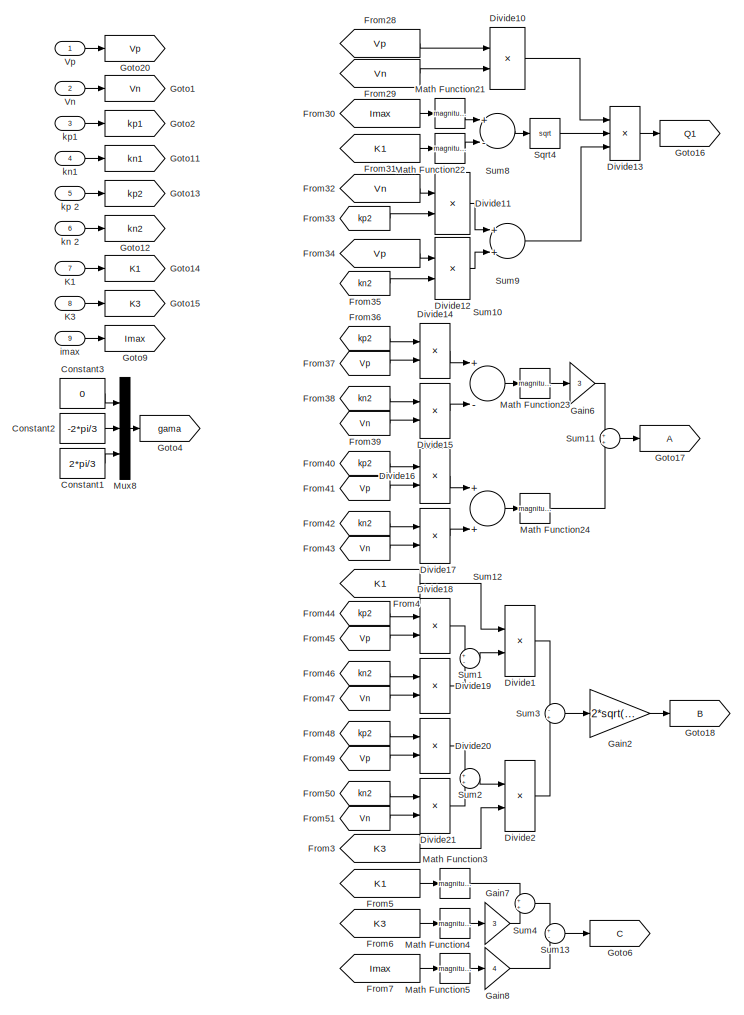
[diagram: FPNSC/Qmax - part 1/2, left side, full height]
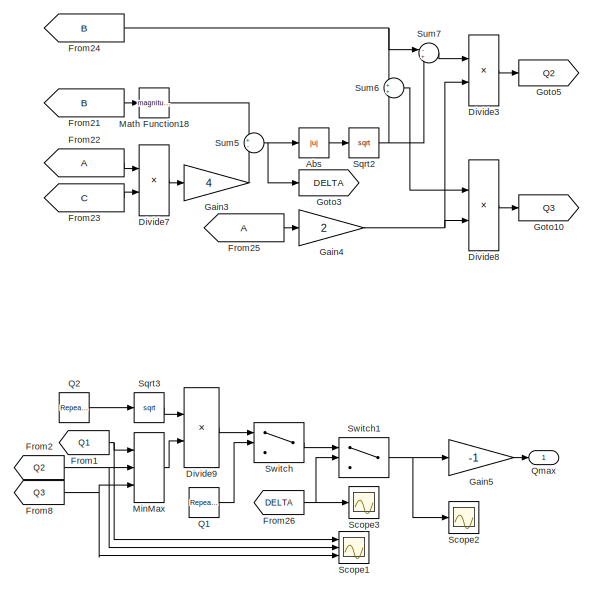
[diagram: FPNSC/Qmax - part 2/2, middle right region]
BLOCK [SubSystem] FPNSC/Qmax
  Ports = [9, 1]
  RequestExecContextInheritance = off
BLOCK [Abs] FPNSC/Qmax/Abs
  SaturateOnIntegerOverflow = off
BLOCK [Constant] FPNSC/Qmax/Constant1
  Value = 2*pi/3
BLOCK [Constant] FPNSC/Qmax/Constant2
  Value = -2*pi/3
BLOCK [Constant] FPNSC/Qmax/Constant3
  Value = 0
BLOCK [Product] FPNSC/Qmax/Divide1
  InputSameDT = off
  Inputs = **
  OutDataTypeStr = Inherit: Inherit via internal rule
  Ports = [2, 1]
  RndMeth = Floor
  SaturateOnIntegerOverflow = off
BLOCK [Product] FPNSC/Qmax/Divide10
  InputSameDT = off
  Inputs = **
  OutDataTypeStr = Inherit: Inherit via internal rule
  Ports = [2, 1]
  RndMeth = Floor
  SaturateOnIntegerOverflow = off
BLOCK [Product] FPNSC/Qmax/Divide11
  InputSameDT = off
  Inputs = **
  OutDataTypeStr = Inherit: Inherit via internal rule
  Ports = [2, 1]
  RndMeth = Floor
  SaturateOnIntegerOverflow = off
BLOCK [Product] FPNSC/Qmax/Divide12
  InputSameDT = off
  Inputs = **
  OutDataTypeStr = Inherit: Inherit via internal rule
  Ports = [2, 1]
  RndMeth = Floor
  SaturateOnIntegerOverflow = off
BLOCK [Product] FPNSC/Qmax/Divide13
  InputSameDT = off
  Inputs = **/
  OutDataTypeStr = Inherit: Inherit via internal rule
  Ports = [3, 1]
  RndMeth = Floor
  SaturateOnIntegerOverflow = off
BLOCK [Product] FPNSC/Qmax/Divide14
  InputSameDT = off
  Inputs = */
  OutDataTypeStr = Inherit: Inherit via internal rule
  Ports = [2, 1]
  RndMeth = Floor
  SaturateOnIntegerOverflow = off
BLOCK [Product] FPNSC/Qmax/Divide15
  InputSameDT = off
  Inputs = */
  OutDataTypeStr = Inherit: Inherit via internal rule
  Ports = [2, 1]
  RndMeth = Floor
  SaturateOnIntegerOverflow = off
BLOCK [Product] FPNSC/Qmax/Divide16
  InputSameDT = off
  Inputs = */
  OutDataTypeStr = Inherit: Inherit via internal rule
  Ports = [2, 1]
  RndMeth = Floor
  SaturateOnIntegerOverflow = off
BLOCK [Product] FPNSC/Qmax/Divide17
  InputSameDT = off
  Inputs = */
  OutDataTypeStr = Inherit: Inherit via internal rule
  Ports = [2, 1]
  RndMeth = Floor
  SaturateOnIntegerOverflow = off
BLOCK [Product] FPNSC/Qmax/Divide18
  InputSameDT = off
  Inputs = */
  OutDataTypeStr = Inherit: Inherit via internal rule
  Ports = [2, 1]
  RndMeth = Floor
  SaturateOnIntegerOverflow = off
BLOCK [Product] FPNSC/Qmax/Divide19
  InputSameDT = off
  Inputs = */
  OutDataTypeStr = Inherit: Inherit via internal rule
  Ports = [2, 1]
  RndMeth = Floor
  SaturateOnIntegerOverflow = off
BLOCK [Product] FPNSC/Qmax/Divide2
  InputSameDT = off
  Inputs = **
  OutDataTypeStr = Inherit: Inherit via internal rule
  Ports = [2, 1]
  RndMeth = Floor
  SaturateOnIntegerOverflow = off
BLOCK [Product] FPNSC/Qmax/Divide20
  InputSameDT = off
  Inputs = */
  OutDataTypeStr = Inherit: Inherit via internal rule
  Ports = [2, 1]
  RndMeth = Floor
  SaturateOnIntegerOverflow = off
BLOCK [Product] FPNSC/Qmax/Divide21
  InputSameDT = off
  Inputs = */
  OutDataTypeStr = Inherit: Inherit via internal rule
  Ports = [2, 1]
  RndMeth = Floor
  SaturateOnIntegerOverflow = off
BLOCK [Product] FPNSC/Qmax/Divide3
  InputSameDT = off
  Inputs = */
  OutDataTypeStr = Inherit: Inherit via internal rule
  Ports = [2, 1]
  RndMeth = Floor
  SaturateOnIntegerOverflow = off
BLOCK [Product] FPNSC/Qmax/Divide7
  InputSameDT = off
  Inputs = **
  OutDataTypeStr = Inherit: Inherit via internal rule
  Ports = [2, 1]
  RndMeth = Floor
  SaturateOnIntegerOverflow = off
BLOCK [Product] FPNSC/Qmax/Divide8
  InputSameDT = off
  Inputs = */
  OutDataTypeStr = Inherit: Inherit via internal rule
  Ports = [2, 1]
  RndMeth = Floor
  SaturateOnIntegerOverflow = off
BLOCK [Product] FPNSC/Qmax/Divide9
  InputSameDT = off
  Inputs = **
  OutDataTypeStr = Inherit: Inherit via internal rule
  Ports = [2, 1]
  RndMeth = Floor
  SaturateOnIntegerOverflow = off
BLOCK [From] FPNSC/Qmax/From1
  GotoTag = Q1
BLOCK [From] FPNSC/Qmax/From2
  GotoTag = Q2
BLOCK [From] FPNSC/Qmax/From21
  GotoTag = B
BLOCK [From] FPNSC/Qmax/From22
BLOCK [From] FPNSC/Qmax/From23
  GotoTag = C
BLOCK [From] FPNSC/Qmax/From24
  GotoTag = B
BLOCK [From] FPNSC/Qmax/From25
BLOCK [From] FPNSC/Qmax/From26
  GotoTag = DELTA
BLOCK [From] FPNSC/Qmax/From28
  GotoTag = Vp
BLOCK [From] FPNSC/Qmax/From29
  GotoTag = Vn
BLOCK [From] FPNSC/Qmax/From3
  GotoTag = K3
BLOCK [From] FPNSC/Qmax/From30
  GotoTag = Imax
BLOCK [From] FPNSC/Qmax/From31
  GotoTag = K1
BLOCK [From] FPNSC/Qmax/From32
  GotoTag = Vn
BLOCK [From] FPNSC/Qmax/From33
  GotoTag = kp2
BLOCK [From] FPNSC/Qmax/From34
  GotoTag = Vp
BLOCK [From] FPNSC/Qmax/From35
  GotoTag = kn2
BLOCK [From] FPNSC/Qmax/From36
  GotoTag = kp2
BLOCK [From] FPNSC/Qmax/From37
  GotoTag = Vp
BLOCK [From] FPNSC/Qmax/From38
  GotoTag = kn2
BLOCK [From] FPNSC/Qmax/From39
  GotoTag = Vn
BLOCK [From] FPNSC/Qmax/From4
  GotoTag = K1
BLOCK [From] FPNSC/Qmax/From40
  GotoTag = kp2
BLOCK [From] FPNSC/Qmax/From41
  GotoTag = Vp
BLOCK [From] FPNSC/Qmax/From42
  GotoTag = kn2
BLOCK [From] FPNSC/Qmax/From43
  GotoTag = Vn
BLOCK [From] FPNSC/Qmax/From44
  GotoTag = kp2
BLOCK [From] FPNSC/Qmax/From45
  GotoTag = Vp
BLOCK [From] FPNSC/Qmax/From46
  GotoTag = kn2
BLOCK [From] FPNSC/Qmax/From47
  GotoTag = Vn
BLOCK [From] FPNSC/Qmax/From48
  GotoTag = kp2
BLOCK [From] FPNSC/Qmax/From49
  GotoTag = Vp
BLOCK [From] FPNSC/Qmax/From5
  GotoTag = K1
BLOCK [From] FPNSC/Qmax/From50
  GotoTag = kn2
BLOCK [From] FPNSC/Qmax/From51
  GotoTag = Vn
BLOCK [From] FPNSC/Qmax/From6
  GotoTag = K3
BLOCK [From] FPNSC/Qmax/From7
  GotoTag = Imax
BLOCK [From] FPNSC/Qmax/From8
  GotoTag = Q3
BLOCK [Gain] FPNSC/Qmax/Gain2
  Gain = 2*sqrt(3)
  OutDataTypeStr = Inherit: Inherit via internal rule
  ParamDataTypeStr = Inherit: Inherit via internal rule
  SaturateOnIntegerOverflow = off
BLOCK [Gain] FPNSC/Qmax/Gain3
  Gain = 4
  OutDataTypeStr = Inherit: Inherit via internal rule
  ParamDataTypeStr = Inherit: Inherit via internal rule
  SaturateOnIntegerOverflow = off
BLOCK [Gain] FPNSC/Qmax/Gain4
  Gain = 2
  OutDataTypeStr = Inherit: Inherit via internal rule
  ParamDataTypeStr = Inherit: Inherit via internal rule
  SaturateOnIntegerOverflow = off
BLOCK [Gain] FPNSC/Qmax/Gain5
  Gain = -1
  OutDataTypeStr = Inherit: Inherit via internal rule
  ParamDataTypeStr = Inherit: Inherit via internal rule
  SaturateOnIntegerOverflow = off
BLOCK [Gain] FPNSC/Qmax/Gain6
  Gain = 3
  OutDataTypeStr = Inherit: Inherit via internal rule
  ParamDataTypeStr = Inherit: Inherit via internal rule
  SaturateOnIntegerOverflow = off
BLOCK [Gain] FPNSC/Qmax/Gain7
  Gain = 3
  OutDataTypeStr = Inherit: Inherit via internal rule
  ParamDataTypeStr = Inherit: Inherit via internal rule
  SaturateOnIntegerOverflow = off
BLOCK [Gain] FPNSC/Qmax/Gain8
  Gain = 4
  OutDataTypeStr = Inherit: Inherit via internal rule
  ParamDataTypeStr = Inherit: Inherit via internal rule
  SaturateOnIntegerOverflow = off
BLOCK [Goto] FPNSC/Qmax/Goto1
  GotoTag = Vn
BLOCK [Goto] FPNSC/Qmax/Goto10
  GotoTag = Q3
BLOCK [Goto] FPNSC/Qmax/Goto11
  GotoTag = kn1
BLOCK [Goto] FPNSC/Qmax/Goto12
  GotoTag = kn2
BLOCK [Goto] FPNSC/Qmax/Goto13
  GotoTag = kp2
BLOCK [Goto] FPNSC/Qmax/Goto14
  GotoTag = K1
BLOCK [Goto] FPNSC/Qmax/Goto15
  GotoTag = K3
BLOCK [Goto] FPNSC/Qmax/Goto16
  GotoTag = Q1
BLOCK [Goto] FPNSC/Qmax/Goto17
BLOCK [Goto] FPNSC/Qmax/Goto18
  GotoTag = B
BLOCK [Goto] FPNSC/Qmax/Goto2
  GotoTag = kp1
BLOCK [Goto] FPNSC/Qmax/Goto20
  GotoTag = Vp
BLOCK [Goto] FPNSC/Qmax/Goto3
  GotoTag = DELTA
BLOCK [Goto] FPNSC/Qmax/Goto4
  GotoTag = gama
BLOCK [Goto] FPNSC/Qmax/Goto5
  GotoTag = Q2
BLOCK [Goto] FPNSC/Qmax/Goto6
  GotoTag = C
BLOCK [Goto] FPNSC/Qmax/Goto9
  GotoTag = Imax
BLOCK [Inport] FPNSC/Qmax/K1
  IconDisplay = Port number
  Port = 7
BLOCK [Inport] FPNSC/Qmax/K3
  IconDisplay = Port number
  Port = 8
BLOCK [Math] FPNSC/Qmax/Math Function18
  Operator = magnitude^2
  Ports = [1, 1]
BLOCK [Math] FPNSC/Qmax/Math Function21
  Operator = magnitude^2
  Ports = [1, 1]
BLOCK [Math] FPNSC/Qmax/Math Function22
  Operator = magnitude^2
  Ports = [1, 1]
BLOCK [Math] FPNSC/Qmax/Math Function23
  Operator = magnitude^2
  Ports = [1, 1]
BLOCK [Math] FPNSC/Qmax/Math Function24
  Operator = magnitude^2
  Ports = [1, 1]
BLOCK [Math] FPNSC/Qmax/Math Function3
  Operator = magnitude^2
  Ports = [1, 1]
BLOCK [Math] FPNSC/Qmax/Math Function4
  Operator = magnitude^2
  Ports = [1, 1]
BLOCK [Math] FPNSC/Qmax/Math Function5
  Operator = magnitude^2
  Ports = [1, 1]
BLOCK [MinMax] FPNSC/Qmax/MinMax
  InputSameDT = off
  Inputs = 3
  Ports = [3, 1]
  SaturateOnIntegerOverflow = off
BLOCK [Mux] FPNSC/Qmax/Mux8
  DisplayOption = bar
  Inputs = 3
  Ports = [3, 1]
BLOCK [Reference] FPNSC/Qmax/Q1  REF=simulink/Sources/Repeating
Sequence
  Ports = [0, 1]
  SourceBlock = simulink/Sources/Repeating\nSequence
  SourceType = Repeating table
  rep_seq_t = [0 t_Qmax1 t_Qmax1+eps 10]
  rep_seq_y = [-1 -1 1 1]
BLOCK [Reference] FPNSC/Qmax/Q2  REF=simulink/Sources/Repeating
Sequence
  Ports = [0, 1]
  SourceBlock = simulink/Sources/Repeating\nSequence
  SourceType = Repeating table
  rep_seq_t = [0 t_Qmax1 t_Qmax2+eps 10]
  rep_seq_y = [0 0 1 1]
BLOCK [Outport] FPNSC/Qmax/Qmax
  IconDisplay = Port number
BLOCK [Scope] FPNSC/Qmax/Scope1
  DataFormat = StructureWithTime
  Floating = off
  LimitDataPoints = off
  NumInputPorts = 3
  Ports = [3]
  SampleTime = 0
  ShowLegends = off
  YMax = 1.3e+06~1.3e+06~1.7e+06
  YMin = 0~-100000~0
BLOCK [Scope] FPNSC/Qmax/Scope2
  DataFormat = StructureWithTime
  Floating = off
  LimitDataPoints = off
  NumInputPorts = 1
  Ports = [1]
  SampleTime = 0
  SaveName = ScopeData10
  ShowLegends = off
  YMax = 1.2e+06
  YMin = 0
BLOCK [Scope] FPNSC/Qmax/Scope3
  DataFormat = StructureWithTime
  Floating = off
  LimitDataPoints = off
  NumInputPorts = 1
  Ports = [1]
  SampleTime = 0
  SaveName = ScopeData1
  ShowLegends = off
  YMax = 1.2e+06
  YMin = 0
  ZoomMode = yonly
BLOCK [Sqrt] FPNSC/Qmax/Sqrt2
BLOCK [Sqrt] FPNSC/Qmax/Sqrt3
BLOCK [Sqrt] FPNSC/Qmax/Sqrt4
BLOCK [Sum] FPNSC/Qmax/Sum1
  IconShape = round
  InputSameDT = off
  Inputs = +-
  OutDataTypeStr = Inherit: Inherit via internal rule
  Ports = [2, 1]
  SaturateOnIntegerOverflow = off
BLOCK [Sum] FPNSC/Qmax/Sum10
  InputSameDT = off
  Inputs = +-
  OutDataTypeStr = Inherit: Inherit via internal rule
  Ports = [2, 1]
  SaturateOnIntegerOverflow = off
BLOCK [Sum] FPNSC/Qmax/Sum11
  IconShape = round
  InputSameDT = off
  OutDataTypeStr = Inherit: Inherit via internal rule
  Ports = [2, 1]
  SaturateOnIntegerOverflow = off
BLOCK [Sum] FPNSC/Qmax/Sum12
  InputSameDT = off
  OutDataTypeStr = Inherit: Inherit via internal rule
  Ports = [2, 1]
  SaturateOnIntegerOverflow = off
BLOCK [Sum] FPNSC/Qmax/Sum13
  IconShape = round
  InputSameDT = off
  Inputs = +-
  OutDataTypeStr = Inherit: Inherit via internal rule
  Ports = [2, 1]
  SaturateOnIntegerOverflow = off
BLOCK [Sum] FPNSC/Qmax/Sum2
  IconShape = round
  InputSameDT = off
  OutDataTypeStr = Inherit: Inherit via internal rule
  Ports = [2, 1]
  SaturateOnIntegerOverflow = off
BLOCK [Sum] FPNSC/Qmax/Sum3
  IconShape = round
  InputSameDT = off
  Inputs = -+
  OutDataTypeStr = Inherit: Inherit via internal rule
  Ports = [2, 1]
  SaturateOnIntegerOverflow = off
BLOCK [Sum] FPNSC/Qmax/Sum4
  IconShape = round
  InputSameDT = off
  OutDataTypeStr = Inherit: Inherit via internal rule
  Ports = [2, 1]
  SaturateOnIntegerOverflow = off
BLOCK [Sum] FPNSC/Qmax/Sum5
  IconShape = round
  InputSameDT = off
  Inputs = +-
  OutDataTypeStr = Inherit: Inherit via internal rule
  Ports = [2, 1]
  SaturateOnIntegerOverflow = off
BLOCK [Sum] FPNSC/Qmax/Sum6
  IconShape = round
  InputSameDT = off
  OutDataTypeStr = Inherit: Inherit via internal rule
  Ports = [2, 1]
  SaturateOnIntegerOverflow = off
BLOCK [Sum] FPNSC/Qmax/Sum7
  IconShape = round
  InputSameDT = off
  Inputs = -+
  OutDataTypeStr = Inherit: Inherit via internal rule
  Ports = [2, 1]
  SaturateOnIntegerOverflow = off
BLOCK [Sum] FPNSC/Qmax/Sum8
  InputSameDT = off
  Inputs = +-
  OutDataTypeStr = Inherit: Inherit via internal rule
  Ports = [2, 1]
  SaturateOnIntegerOverflow = off
BLOCK [Sum] FPNSC/Qmax/Sum9
  InputSameDT = off
  OutDataTypeStr = Inherit: Inherit via internal rule
  Ports = [2, 1]
  SaturateOnIntegerOverflow = off
BLOCK [Switch] FPNSC/Qmax/Switch
  InputSameDT = off
  SaturateOnIntegerOverflow = off
BLOCK [Switch] FPNSC/Qmax/Switch1
  InputSameDT = off
  SaturateOnIntegerOverflow = off
BLOCK [Inport] FPNSC/Qmax/Vn
  IconDisplay = Port number
  Port = 2
BLOCK [Inport] FPNSC/Qmax/Vp
  IconDisplay = Port number
BLOCK [Inport] FPNSC/Qmax/imax
  IconDisplay = Port number
  Port = 9
BLOCK [Inport] FPNSC/Qmax/kn 2
  IconDisplay = Port number
  Port = 6
BLOCK [Inport] FPNSC/Qmax/kn1
  IconDisplay = Port number
  Port = 4
BLOCK [Inport] FPNSC/Qmax/kp 2
  IconDisplay = Port number
  Port = 5
BLOCK [Inport] FPNSC/Qmax/kp1
  IconDisplay = Port number
  Port = 3
BLOCK [Inport] FPNSC/Qref
  IconDisplay = Port number
  Port = 3
BLOCK [Scope] FPNSC/Scope3
  DataFormat = StructureWithTime
  Floating = off
  LimitDataPoints = off
  NumInputPorts = 2
  Ports = [2]
  SampleTime = 0
  SaveName = ScopeData11
  ShowLegends = off
  YMax = 800~70
  YMin = -800~-70
  ZoomMode = xonly
BLOCK [Sqrt] FPNSC/Sqrt
BLOCK [Sqrt] FPNSC/Sqrt1
BLOCK [Sum] FPNSC/Sum1
  InputSameDT = off
  Inputs = ++++
  OutDataTypeStr = Inherit: Inherit via internal rule
  Ports = [4, 1]
  SaturateOnIntegerOverflow = off
BLOCK [Sum] FPNSC/Sum10
  InputSameDT = off
  OutDataTypeStr = Inherit: Inherit via internal rule
  Ports = [2, 1]
  SaturateOnIntegerOverflow = off
BLOCK [Sum] FPNSC/Sum11
  InputSameDT = off
  Inputs = +++
  OutDataTypeStr = Inherit: Inherit via internal rule
  Ports = [3, 1]
  SaturateOnIntegerOverflow = off
BLOCK [Sum] FPNSC/Sum12
  InputSameDT = off
  Inputs = +++
  OutDataTypeStr = Inherit: Inherit via internal rule
  Ports = [3, 1]
  SaturateOnIntegerOverflow = off
BLOCK [Sum] FPNSC/Sum13
  IconShape = round
  InputSameDT = off
  OutDataTypeStr = Inherit: Inherit via internal rule
  Ports = [2, 1]
  SaturateOnIntegerOverflow = off
BLOCK [Sum] FPNSC/Sum14
  IconShape = round
  InputSameDT = off
  OutDataTypeStr = Inherit: Inherit via internal rule
  Ports = [2, 1]
  SaturateOnIntegerOverflow = off
BLOCK [Sum] FPNSC/Sum15
  InputSameDT = off
  Inputs = +++
  OutDataTypeStr = Inherit: Inherit via internal rule
  Ports = [3, 1]
  SaturateOnIntegerOverflow = off
BLOCK [Sum] FPNSC/Sum2
  IconShape = round
  InputSameDT = off
  Inputs = -+
  OutDataTypeStr = Inherit: Inherit via internal rule
  Ports = [2, 1]
  SaturateOnIntegerOverflow = off
BLOCK [Sum] FPNSC/Sum20
  IconShape = round
  InputSameDT = off
  Inputs = -+
  OutDataTypeStr = Inherit: Inherit via internal rule
  Ports = [2, 1]
  SaturateOnIntegerOverflow = off
BLOCK [Sum] FPNSC/Sum3
  InputSameDT = off
  Inputs = +-
  OutDataTypeStr = Inherit: Inherit via internal rule
  Ports = [2, 1]
  SaturateOnIntegerOverflow = off
BLOCK [Sum] FPNSC/Sum4
  InputSameDT = off
  Inputs = +-
  OutDataTypeStr = Inherit: Inherit via internal rule
  Ports = [2, 1]
  SaturateOnIntegerOverflow = off
BLOCK [Sum] FPNSC/Sum5
  InputSameDT = off
  OutDataTypeStr = Inherit: Inherit via internal rule
  Ports = [2, 1]
  SaturateOnIntegerOverflow = off
BLOCK [Sum] FPNSC/Sum6
  InputSameDT = off
  OutDataTypeStr = Inherit: Inherit via internal rule
  Ports = [2, 1]
  SaturateOnIntegerOverflow = off
BLOCK [Sum] FPNSC/Sum7
  InputSameDT = off
  Inputs = +++
  OutDataTypeStr = Inherit: Inherit via internal rule
  Ports = [3, 1]
  SaturateOnIntegerOverflow = off
BLOCK [Sum] FPNSC/Sum8
  InputSameDT = off
  Inputs = ++--
  OutDataTypeStr = Inherit: Inherit via internal rule
  Ports = [4, 1]
  SaturateOnIntegerOverflow = off
BLOCK [Sum] FPNSC/Sum9
  InputSameDT = off
  Inputs = +-
  OutDataTypeStr = Inherit: Inherit via internal rule
  Ports = [2, 1]
  SaturateOnIntegerOverflow = off
BLOCK [Trigonometry] FPNSC/Trigonometric Function1
  Operator = cos
  Ports = [1, 1]
BLOCK [Trigonometry] FPNSC/Trigonometric Function10
  Operator = cos
  Ports = [1, 1]
BLOCK [Trigonometry] FPNSC/Trigonometric Function11
  Ports = [1, 1]
BLOCK [Trigonometry] FPNSC/Trigonometric Function12
  Ports = [1, 1]
BLOCK [Trigonometry] FPNSC/Trigonometric Function2
  Ports = [1, 1]
BLOCK [Trigonometry] FPNSC/Trigonometric Function3
  Ports = [1, 1]
BLOCK [Trigonometry] FPNSC/Trigonometric Function4
  Operator = cos
  Ports = [1, 1]
BLOCK [Trigonometry] FPNSC/Trigonometric Function5
  Ports = [1, 1]
BLOCK [Trigonometry] FPNSC/Trigonometric Function6
  Ports = [1, 1]
BLOCK [Trigonometry] FPNSC/Trigonometric Function7
  Operator = cos
  Ports = [1, 1]
BLOCK [Trigonometry] FPNSC/Trigonometric Function8
  Ports = [1, 1]
BLOCK [Trigonometry] FPNSC/Trigonometric Function9
  Ports = [1, 1]
BLOCK [Inport] FPNSC/Vabc
  IconDisplay = Port number
BLOCK [Reference] FPNSC/abc to Alpha-Beta-Zero  REF=powerlib_meascontrol/Transformations/abc to
Alpha-Beta-Zero
  Ports = [1, 1]
  SourceBlock = powerlib_meascontrol/Transformations/abc to\nAlpha-Beta-Zero
  SourceType = abc to Alpha-Beta-Zero Transformation
BLOCK [Reference] FPNSC/abc to Alpha-Beta-Zero1  REF=powerlib_meascontrol/Transformations/abc to
Alpha-Beta-Zero
  Ports = [1, 1]
  SourceBlock = powerlib_meascontrol/Transformations/abc to\nAlpha-Beta-Zero
  SourceType = abc to Alpha-Beta-Zero Transformation
BLOCK [Reference] FPNSC/abc to Alpha-Beta-Zero2  REF=powerlib_meascontrol/Transformations/abc to
Alpha-Beta-Zero
  Ports = [1, 1]
  SourceBlock = powerlib_meascontrol/Transformations/abc to\nAlpha-Beta-Zero
  SourceType = abc to Alpha-Beta-Zero Transformation
BLOCK [Reference] FPNSC/abc to Alpha-Beta-Zero3  REF=powerlib_meascontrol/Transformations/abc to
Alpha-Beta-Zero
  Ports = [1, 1]
  SourceBlock = powerlib_meascontrol/Transformations/abc to\nAlpha-Beta-Zero
  SourceType = abc to Alpha-Beta-Zero Transformation
BLOCK [Inport] FPNSC/imax
  IconDisplay = Port number
  Port = 5
BLOCK [Reference] FPNSC/k1  REF=simulink/Sources/Repeating
Sequence
  Ports = [0, 1]
  SourceBlock = simulink/Sources/Repeating\nSequence
  SourceType = Repeating table
  rep_seq_t = [0 t_k1 t_k1+eps t_k2 t_k2+eps 10]
  rep_seq_y = [1 1 k1 k1 k2 k2]
BLOCK [Reference] FPNSC/k2  REF=simulink/Sources/Repeating
Sequence
  Ports = [0, 1]
  SourceBlock = simulink/Sources/Repeating\nSequence
  SourceType = Repeating table
  rep_seq_t = [0 t_h1 t_h1+eps t_h2 t_h2+eps 10]
  rep_seq_y = [1 1 h1 h1 h2 h2]
BLOCK [Inport] FPNSC/wt
  IconDisplay = Port number
  Port = 4
BLOCK [From] From10
  GotoTag = It_abc
BLOCK [From] From11
  GotoTag = wt
BLOCK [From] From12
  GotoTag = Vg_abc
BLOCK [From] From14
  GotoTag = Vabc
BLOCK [From] From15
  GotoTag = Vabc
BLOCK [From] From25
  GotoTag = Vabc
BLOCK [From] From26
  GotoTag = wt
BLOCK [From] From31
  GotoTag = Vabc
BLOCK [From] From33
  GotoTag = wt
BLOCK [From] From35
  GotoTag = Pref
BLOCK [From] From36
  GotoTag = Qref
BLOCK [From] From37
  GotoTag = Imax
BLOCK [From] From4
  GotoTag = Iabc
BLOCK [From] From5
  GotoTag = m_abc
BLOCK [From] From6
  GotoTag = Iabc_ref
BLOCK [From] From77
  GotoTag = Vabc
BLOCK [From] From78
  GotoTag = wt
BLOCK [From] From9
  GotoTag = Vg_abc
BLOCK [Gain] Gain1
  Gain = 1/(Vs)
  OutDataTypeStr = Inherit: Inherit via internal rule
  ParamDataTypeStr = Inherit: Inherit via internal rule
  SaturateOnIntegerOverflow = off
BLOCK [Gain] Gain2
  Gain = 1/(Vs)
  OutDataTypeStr = Inherit: Inherit via internal rule
  ParamDataTypeStr = Inherit: Inherit via internal rule
  SaturateOnIntegerOverflow = off
BLOCK [Gain] Gain6
  Gain = -1
  OutDataTypeStr = Inherit: Inherit via internal rule
  ParamDataTypeStr = Inherit: Inherit via internal rule
  SaturateOnIntegerOverflow = off
BLOCK [Goto] Goto1
  GotoTag = Vabc
BLOCK [Goto] Goto11
  GotoTag = It_dq0
BLOCK [Goto] Goto12
  GotoTag = Vpn
BLOCK [Goto] Goto13
  GotoTag = Vdq0
BLOCK [Goto] Goto17
  GotoTag = Pref
BLOCK [Goto] Goto19
  GotoTag = PQ_case1
BLOCK [Goto] Goto2
  GotoTag = Vt_abc
BLOCK [Goto] Goto20
  GotoTag = Qref
BLOCK [Goto] Goto21
  GotoTag = PQ_case2
BLOCK [Goto] Goto22
  GotoTag = Iabc_case2
BLOCK [Goto] Goto23
  GotoTag = Iabc_case1
BLOCK [Goto] Goto3
  GotoTag = m_abc
BLOCK [Goto] Goto4
  GotoTag = wt
BLOCK [Goto] Goto5
  GotoTag = Vg_abc
BLOCK [Goto] Goto6
  GotoTag = Iabc_ref
BLOCK [Goto] Goto7
  GotoTag = Iabc
BLOCK [Goto] Goto9
  GotoTag = Vg_pn
BLOCK [Reference] Ground  REF=powerlib/Elements/Ground
  LConnTagsString = a
  Ports = [0, 0, 0, 0, 0, 1]
  SourceBlock = powerlib/Elements/Ground
  SourceType = Ground
BLOCK [Reference] Ground1  REF=powerlib/Elements/Ground
  LConnTagsString = a
  Ports = [0, 0, 0, 0, 0, 1]
  SourceBlock = powerlib/Elements/Ground
  SourceType = Ground
BLOCK [Reference] P  REF=simulink/Sources/Repeating
Sequence
  Ports = [0, 1]
  SourceBlock = simulink/Sources/Repeating\nSequence
  SourceType = Repeating table
  rep_seq_t = [0 t_Pref1 t_Pref1+eps t_Pref2 t_Pref2+eps 10]
  rep_seq_y = 2/3*[0 0 Pref1 Pref1 Pref2 Pref2]
BLOCK [Reference] PLL (3ph)  REF=powerlib_meascontrol/PLL/PLL
(3ph)
  AGC = on
  FilterCutOffFreq = 25
  Fmin = 45
  MaxRateChangeFreq = 12
  ParK = [180, 3200, 1]
  Par_Init = [0, 60]
  Ports = [1, 2]
  SourceBlock = powerlib_meascontrol/PLL/PLL\n(3ph)
  SourceType = PLL (3ph)
  TcD = 1e-4
  Ts = 0
BLOCK [Reference] Parallel RLC Branch  REF=powerlib/Elements/Parallel RLC Branch
  AttributesFormatString = \n
  BranchType = R
  Capacitance = 1e-6
  Inductance = 1e-3
  InitialCurrent = 0
  InitialVoltage = 0
  LConnTagsString = a
  Measurements = None
  Ports = [0, 0, 0, 0, 0, 1, 1]
  RConnTagsString = __new0
  Resistance = .8e-3
  SetiL0 = off
  Setx0 = off
  SourceBlock = powerlib/Elements/Parallel RLC Branch
  SourceType = Parallel RLC Branch
BLOCK [Reference] Parallel RLC Branch1  REF=powerlib/Elements/Parallel RLC Branch
  AttributesFormatString = \n
  BranchType = R
  Capacitance = 1e-6
  Inductance = 1e-3
  InitialCurrent = 0
  InitialVoltage = 0
  LConnTagsString = a
  Measurements = None
  Ports = [0, 0, 0, 0, 0, 1, 1]
  RConnTagsString = __new0
  Resistance = .02
  SetiL0 = off
  Setx0 = off
  SourceBlock = powerlib/Elements/Parallel RLC Branch
  SourceType = Parallel RLC Branch
BLOCK [Reference] Q  REF=simulink/Sources/Repeating
Sequence
  Ports = [0, 1]
  SourceBlock = simulink/Sources/Repeating\nSequence
  SourceType = Repeating table
  rep_seq_t = [0 t_Qref1 t_Qref1+eps t_Qref2 t_Qref2+eps 10]
  rep_seq_y = -2/3*[0 0 Qref1 Qref1 Qref2 Qref2]
BLOCK [Reference] Rs1  Ls1  REF=powerlib/Elements/Three-Phase
Series RLC Branch
  AttributesFormatString = \n
  BranchType = RL
  Capacitance = 1e-6
  Inductance = l
  LConnTagsString = A|B|C
  Measurements = None
  Ports = [0, 0, 0, 0, 0, 3, 3]
  RConnTagsString = A|B|C
  Resistance = r
  SourceBlock = powerlib/Elements/Three-Phase\nSeries RLC Branch
  SourceType = Three-Phase Series RLC Branch
BLOCK [Reference] Rs1  Ls2  REF=powerlib/Elements/Three-Phase
Series RLC Branch
  AttributesFormatString = \n
  BranchType = R
  Capacitance = 1e-6
  Inductance = l
  LConnTagsString = A|B|C
  Measurements = None
  Ports = [0, 0, 0, 0, 0, 3, 3]
  RConnTagsString = A|B|C
  Resistance = 1e-3
  SourceBlock = powerlib/Elements/Three-Phase\nSeries RLC Branch
  SourceType = Three-Phase Series RLC Branch
BLOCK [Reference] Rs1  Ls5  REF=powerlib/Elements/Three-Phase
Series RLC Branch
  AttributesFormatString = \n
  BranchType = RL
  Capacitance = 1e-6
  Inductance = Lg
  LConnTagsString = A|B|C
  Measurements = None
  Ports = [0, 0, 0, 0, 0, 3, 3]
  RConnTagsString = A|B|C
  Resistance = 7e-3
  SourceBlock = powerlib/Elements/Three-Phase\nSeries RLC Branch
  SourceType = Three-Phase Series RLC Branch
BLOCK [Reference] Sequence Analyzer1  REF=powerlib_meascontrol/Measurements/Sequence Analyzer
  Freq = 60
  InInit = [1, 0]
  Ports = [1, 2]
  SourceBlock = powerlib_meascontrol/Measurements/Sequence Analyzer
  SourceType = Sequence Analyzer
  Ts = 0
  n = 1
  seq = Positive Negative Zero
BLOCK [Reference] Sequence Analyzer2  REF=powerlib_meascontrol/Measurements/Sequence Analyzer
  Freq = 60
  InInit = [1, 0]
  Ports = [1, 2]
  SourceBlock = powerlib_meascontrol/Measurements/Sequence Analyzer
  SourceType = Sequence Analyzer
  Ts = 0
  n = 1
  seq = Positive Negative Zero
BLOCK [Reference] Three-Phase Breaker1  REF=powerlib/Elements/Three-Phase Breaker
  BreakerResistance = 1e-40
  External = off
  InitialState = open
  Measurements = None
  Ports = [0, 0, 0, 0, 0, 3, 3]
  SnubberCapacitance = inf
  SnubberResistance = 1e6
  SourceBlock = powerlib/Elements/Three-Phase Breaker
  SourceType = Three-Phase Breaker
  SwitchA = on
  SwitchB = on
  SwitchC = on
  SwitchTimes = [.2 10]
BLOCK [Reference] Three-Phase Breaker2  REF=powerlib/Elements/Three-Phase Breaker
  BreakerResistance = 1e-40
  External = off
  InitialState = open
  Measurements = None
  Ports = [0, 0, 0, 0, 0, 3, 3]
  SnubberCapacitance = inf
  SnubberResistance = 1e6
  SourceBlock = powerlib/Elements/Three-Phase Breaker
  SourceType = Three-Phase Breaker
  SwitchA = on
  SwitchB = on
  SwitchC = on
  SwitchTimes = .4
BLOCK [Reference] Three-Phase V-I Measurement1  REF=powerlib/Measurements/Three-Phase
V-I Measurement
  CurrentMeasurement = yes
  Ipu = off
  LabelI = Iabc
  LabelV = Vabc
  OutputType = Complex
  PSBequivalent = 0
  Pbase = 100e6
  PhasorSimulation = off
  Ports = [0, 2, 0, 0, 0, 3, 3]
  SetLabelI = off
  SetLabelV = off
  SourceBlock = powerlib/Measurements/Three-Phase\nV-I Measurement
  SourceType = Three-Phase VI Measurement
  Vbase = 500e3
  VoltageMeasurement = phase-to-ground
  Vpu = off
  VpuLL = off
BLOCK [Reference] Three-Phase V-I Measurement3  REF=powerlib/Measurements/Three-Phase
V-I Measurement
  CurrentMeasurement = yes
  Ipu = off
  LabelI = Iabc
  LabelV = Vabc
  OutputType = Complex
  PSBequivalent = 0
  Pbase = 100e6
  PhasorSimulation = off
  Ports = [0, 2, 0, 0, 0, 3, 3]
  SetLabelI = off
  SetLabelV = off
  SourceBlock = powerlib/Measurements/Three-Phase\nV-I Measurement
  SourceType = Three-Phase VI Measurement
  Vbase = 500e3
  VoltageMeasurement = phase-to-ground
  Vpu = off
  VpuLL = off
BLOCK [SubSystem] VSC
  Ports = [1, 1, 0, 0, 0, 3, 3]
  RequestExecContextInheritance = off
BLOCK [Reference] VSC/Average_Na  REF=powerlib/Electrical
Sources/Controlled Current Source
  Amplitude = 0
  Frequency = 0
  Initialize = on
  Measurements = None
  Phase = 0
  Ports = [1, 0, 0, 0, 0, 1, 1]
  SourceBlock = powerlib/Electrical\nSources/Controlled Current Source
  SourceType = Controlled Current Source
  Source_Type = AC
BLOCK [Reference] VSC/Average_Nb  REF=powerlib/Electrical
Sources/Controlled Current Source
  Amplitude = 0
  Frequency = 0
  Initialize = on
  Measurements = None
  Phase = 0
  Ports = [1, 0, 0, 0, 0, 1, 1]
  SourceBlock = powerlib/Electrical\nSources/Controlled Current Source
  SourceType = Controlled Current Source
  Source_Type = AC
BLOCK [Reference] VSC/Average_Nc  REF=powerlib/Electrical
Sources/Controlled Current Source
  Amplitude = 0
  Frequency = 0
  Initialize = on
  Measurements = None
  Phase = 0
  Ports = [1, 0, 0, 0, 0, 1, 1]
  SourceBlock = powerlib/Electrical\nSources/Controlled Current Source
  SourceType = Controlled Current Source
  Source_Type = AC
BLOCK [Reference] VSC/Average_Pa  REF=powerlib/Electrical
Sources/Controlled Current Source
  Amplitude = 0
  Frequency = 0
  Initialize = on
  Measurements = None
  Phase = 0
  Ports = [1, 0, 0, 0, 0, 1, 1]
  SourceBlock = powerlib/Electrical\nSources/Controlled Current Source
  SourceType = Controlled Current Source
  Source_Type = AC
BLOCK [Reference] VSC/Average_Pb  REF=powerlib/Electrical
Sources/Controlled Current Source
  Amplitude = 0
  Frequency = 0
  Initialize = on
  Measurements = None
  Phase = 0
  Ports = [1, 0, 0, 0, 0, 1, 1]
  SourceBlock = powerlib/Electrical\nSources/Controlled Current Source
  SourceType = Controlled Current Source
  Source_Type = AC
BLOCK [Reference] VSC/Average_Pc  REF=powerlib/Electrical
Sources/Controlled Current Source
  Amplitude = 0
  Frequency = 0
  Initialize = on
  Measurements = None
  Phase = 0
  Ports = [1, 0, 0, 0, 0, 1, 1]
  SourceBlock = powerlib/Electrical\nSources/Controlled Current Source
  SourceType = Controlled Current Source
  Source_Type = AC
BLOCK [Demux] VSC/Demux
  DisplayOption = bar
  Outputs = 3
  Ports = [1, 3]
BLOCK [Fcn] VSC/Fcn
  Expr = (1+u(1))/2
BLOCK [Fcn] VSC/Fcn1
  Expr = (1-u(1))/2
BLOCK [Fcn] VSC/Fcn2
  Expr = (1+u(1))/2
BLOCK [Fcn] VSC/Fcn3
  Expr = (1+u(1))/2
BLOCK [Fcn] VSC/Fcn4
  Expr = (1-u(1))/2
BLOCK [Fcn] VSC/Fcn5
  Expr = (1-u(1))/2
BLOCK [Reference] VSC/Neutral  REF=powerlib/Elements/Neutral
  AttributesFormatString = node %<NodeNumber>
  LConnTagsString = a
  NodeNumber = 10
  Ports = [0, 0, 0, 0, 0, 1]
  SourceBlock = powerlib/Elements/Neutral
  SourceType = Neutral
BLOCK [Reference] VSC/Neutral1  REF=powerlib/Elements/Neutral
  AttributesFormatString = node %<NodeNumber>
  LConnTagsString = a
  NodeNumber = 10
  Ports = [0, 0, 0, 0, 0, 1]
  SourceBlock = powerlib/Elements/Neutral
  SourceType = Neutral
BLOCK [Reference] VSC/Neutral2  REF=powerlib/Elements/Neutral
  AttributesFormatString = node %<NodeNumber>
  LConnTagsString = a
  NodeNumber = 10
  Ports = [0, 0, 0, 0, 0, 1]
  SourceBlock = powerlib/Elements/Neutral
  SourceType = Neutral
BLOCK [Reference] VSC/Neutral3  REF=powerlib/Elements/Neutral
  AttributesFormatString = node %<NodeNumber>
  LConnTagsString = a
  NodeNumber = 10
  Ports = [0, 0, 0, 0, 0, 1]
  SourceBlock = powerlib/Elements/Neutral
  SourceType = Neutral
BLOCK [Reference] VSC/Neutral4  REF=powerlib/Elements/Neutral
  AttributesFormatString = node %<NodeNumber>
  LConnTagsString = a
  NodeNumber = 11
  Ports = [0, 0, 0, 0, 0, 1]
  SourceBlock = powerlib/Elements/Neutral
  SourceType = Neutral
BLOCK [Reference] VSC/Neutral5  REF=powerlib/Elements/Neutral
  AttributesFormatString = node %<NodeNumber>
  LConnTagsString = a
  NodeNumber = 12
  Ports = [0, 0, 0, 0, 0, 1]
  SourceBlock = powerlib/Elements/Neutral
  SourceType = Neutral
BLOCK [Reference] VSC/Neutral6  REF=powerlib/Elements/Neutral
  AttributesFormatString = node %<NodeNumber>
  LConnTagsString = a
  NodeNumber = 11
  Ports = [0, 0, 0, 0, 0, 1]
  SourceBlock = powerlib/Elements/Neutral
  SourceType = Neutral
BLOCK [Reference] VSC/Neutral7  REF=powerlib/Elements/Neutral
  AttributesFormatString = node %<NodeNumber>
  LConnTagsString = a
  NodeNumber = 11
  Ports = [0, 0, 0, 0, 0, 1]
  SourceBlock = powerlib/Elements/Neutral
  SourceType = Neutral
BLOCK [Reference] VSC/Neutral8  REF=powerlib/Elements/Neutral
  AttributesFormatString = node %<NodeNumber>
  LConnTagsString = a
  NodeNumber = 12
  Ports = [0, 0, 0, 0, 0, 1]
  SourceBlock = powerlib/Elements/Neutral
  SourceType = Neutral
BLOCK [Reference] VSC/Neutral9  REF=powerlib/Elements/Neutral
  AttributesFormatString = node %<NodeNumber>
  LConnTagsString = a
  NodeNumber = 12
  Ports = [0, 0, 0, 0, 0, 1]
  SourceBlock = powerlib/Elements/Neutral
  SourceType = Neutral
BLOCK [Product] VSC/Product
  InputSameDT = off
  OutDataTypeStr = Inherit: Inherit via internal rule
  Ports = [2, 1]
  SaturateOnIntegerOverflow = off
BLOCK [Product] VSC/Product1
  InputSameDT = off
  OutDataTypeStr = Inherit: Inherit via internal rule
  Ports = [2, 1]
  SaturateOnIntegerOverflow = off
BLOCK [Product] VSC/Product2
  InputSameDT = off
  OutDataTypeStr = Inherit: Inherit via internal rule
  Ports = [2, 1]
  SaturateOnIntegerOverflow = off
BLOCK [Product] VSC/Product3
  InputSameDT = off
  OutDataTypeStr = Inherit: Inherit via internal rule
  Ports = [2, 1]
  SaturateOnIntegerOverflow = off
BLOCK [Product] VSC/Product4
  InputSameDT = off
  OutDataTypeStr = Inherit: Inherit via internal rule
  Ports = [2, 1]
  SaturateOnIntegerOverflow = off
BLOCK [Product] VSC/Product5
  InputSameDT = off
  OutDataTypeStr = Inherit: Inherit via internal rule
  Ports = [2, 1]
  SaturateOnIntegerOverflow = off
BLOCK [Product] VSC/Product6
  InputSameDT = off
  OutDataTypeStr = Inherit: Inherit via internal rule
  Ports = [2, 1]
  SaturateOnIntegerOverflow = off
BLOCK [Product] VSC/Product7
  InputSameDT = off
  OutDataTypeStr = Inherit: Inherit via internal rule
  Ports = [2, 1]
  SaturateOnIntegerOverflow = off
BLOCK [Product] VSC/Product8
  InputSameDT = off
  OutDataTypeStr = Inherit: Inherit via internal rule
  Ports = [2, 1]
  SaturateOnIntegerOverflow = off
BLOCK [Reference] VSC/Three-Phase V-I Measurement  REF=powerlib/Measurements/Three-Phase
V-I Measurement
  CurrentMeasurement = yes
  Ipu = off
  LabelI = Iabc
  LabelV = Vabc
  OutputType = Complex
  PSBequivalent = 0
  Pbase = 100e6
  PhasorSimulation = off
  Ports = [0, 2, 0, 0, 0, 3, 3]
  SetLabelI = off
  SetLabelV = off
  SourceBlock = powerlib/Measurements/Three-Phase\nV-I Measurement
  SourceType = Three-Phase VI Measurement
  Vbase = 500e3
  VoltageMeasurement = phase-to-ground
  Vpu = off
  VpuLL = off
BLOCK [PMIOPort] VSC/V0
  Port = 5
  Side = Left
BLOCK [PMIOPort] VSC/Vn
  Port = 6
  Side = Left
BLOCK [PMIOPort] VSC/Vp
  Port = 4
  Side = Left
BLOCK [Outport] VSC/Vt
  IconDisplay = Port number
BLOCK [PMIOPort] VSC/Vt'_a
  Port = 1
  Side = Right
BLOCK [PMIOPort] VSC/Vt'_b
  Port = 2
  Side = Right
BLOCK [PMIOPort] VSC/Vt'_c
  Port = 3
  Side = Right
BLOCK [Reference] VSC/Vta  REF=powerlib/Electrical
Sources/Controlled Voltage Source
  Amplitude = 0
  Frequency = 0
  Initialize = on
  Measurements = None
  Phase = 0
  Ports = [1, 0, 0, 0, 0, 1, 1]
  SourceBlock = powerlib/Electrical\nSources/Controlled Voltage Source
  SourceType = Controlled Voltage Source
  Source_Type = AC
BLOCK [Reference] VSC/Vtb  REF=powerlib/Electrical
Sources/Controlled Voltage Source
  Amplitude = 0
  Frequency = 0
  Initialize = on
  Measurements = None
  Phase = 0
  Ports = [1, 0, 0, 0, 0, 1, 1]
  SourceBlock = powerlib/Electrical\nSources/Controlled Voltage Source
  SourceType = Controlled Voltage Source
  Source_Type = AC
BLOCK [Reference] VSC/Vtc  REF=powerlib/Electrical
Sources/Controlled Voltage Source
  Amplitude = 0
  Frequency = 0
  Initialize = on
  Measurements = None
  Phase = 0
  Ports = [1, 0, 0, 0, 0, 1, 1]
  SourceBlock = powerlib/Electrical\nSources/Controlled Voltage Source
  SourceType = Controlled Voltage Source
  Source_Type = AC
BLOCK [Reference] VSC/i_switching  REF=powerlib/Electrical
Sources/AC Current Source
  Amplitude = 1
  Frequency = 0
  Measurements = None
  Phase = 0
  Ports = [0, 0, 0, 0, 0, 1, 1]
  SampleTime = 0
  SourceBlock = powerlib/Electrical\nSources/AC Current Source
  SourceType = AC Current Source
BLOCK [Reference] VSC/ia  REF=powerlib/Measurements/Current Measurement
  OutputType = Complex
  PSBequivalent = 0
  PhasorSimulation = off
  Ports = [0, 1, 0, 0, 0, 1, 1]
  SourceBlock = powerlib/Measurements/Current Measurement
  SourceType = Current Measurement
BLOCK [Reference] VSC/ib  REF=powerlib/Measurements/Current Measurement
  OutputType = Complex
  PSBequivalent = 0
  PhasorSimulation = off
  Ports = [0, 1, 0, 0, 0, 1, 1]
  SourceBlock = powerlib/Measurements/Current Measurement
  SourceType = Current Measurement
BLOCK [Reference] VSC/ic  REF=powerlib/Measurements/Current Measurement
  OutputType = Complex
  PSBequivalent = 0
  PhasorSimulation = off
  Ports = [0, 1, 0, 0, 0, 1, 1]
  SourceBlock = powerlib/Measurements/Current Measurement
  SourceType = Current Measurement
BLOCK [Inport] VSC/m_abc
  IconDisplay = Port number
BLOCK [Reference] VSC/vdc//2  REF=powerlib/Measurements/Voltage Measurement
  OutputType = Complex
  PSBequivalent = 0
  PhasorSimulation = off
  Ports = [0, 1, 0, 0, 0, 2]
  SourceBlock = powerlib/Measurements/Voltage Measurement
  SourceType = Voltage Measurement
BLOCK [SubSystem] Voltage Terms
  Ports = [2, 1]
  RequestExecContextInheritance = off
BLOCK [SubSystem] Voltage Terms/ABC  to   + - 0
  Ports = [2, 3]
  RequestExecContextInheritance = off
BLOCK [Outport] Voltage Terms/ABC  to   + - 0/+
  IconDisplay = Port number
BLOCK [Outport] Voltage Terms/ABC  to   + - 0/-
  IconDisplay = Port number
  Port = 2
BLOCK [Outport] Voltage Terms/ABC  to   + - 0/0
  IconDisplay = Port number
  Port = 3
BLOCK [Constant] Voltage Terms/ABC  to   + - 0/Constant
  Value = -2*pi/3
BLOCK [Constant] Voltage Terms/ABC  to   + - 0/Constant1
  Value = 2*pi/3
BLOCK [Constant] Voltage Terms/ABC  to   + - 0/Constant6
  Value = 2*pi/3
BLOCK [Constant] Voltage Terms/ABC  to   + - 0/Constant7
  Value = -2*pi/3
BLOCK [Demux] Voltage Terms/ABC  to   + - 0/Demux1
  DisplayOption = bar
  Outputs = 3
  Ports = [1, 3]
BLOCK [Demux] Voltage Terms/ABC  to   + - 0/Demux13
  DisplayOption = bar
  Outputs = 3
  Ports = [1, 3]
BLOCK [Demux] Voltage Terms/ABC  to   + - 0/Demux14
  DisplayOption = bar
  Outputs = 3
  Ports = [1, 3]
BLOCK [Demux] Voltage Terms/ABC  to   + - 0/Demux2
  DisplayOption = bar
  Outputs = 3
  Ports = [1, 3]
BLOCK [Demux] Voltage Terms/ABC  to   + - 0/Demux5
  DisplayOption = bar
  Outputs = 3
  Ports = [1, 3]
BLOCK [Demux] Voltage Terms/ABC  to   + - 0/Demux6
  DisplayOption = bar
  Outputs = 3
  Ports = [1, 3]
BLOCK [From] Voltage Terms/ABC  to   + - 0/From1
  GotoTag = wt
BLOCK [From] Voltage Terms/ABC  to   + - 0/From4
  GotoTag = wt
BLOCK [Gain] Voltage Terms/ABC  to   + - 0/Gain1
  Gain = pi/180
  OutDataTypeStr = Inherit: Inherit via internal rule
  ParamDataTypeStr = Inherit: Inherit via internal rule
  SaturateOnIntegerOverflow = off
BLOCK [Gain] Voltage Terms/ABC  to   + - 0/Gain2
  Gain = pi/180
  OutDataTypeStr = Inherit: Inherit via internal rule
  ParamDataTypeStr = Inherit: Inherit via internal rule
  SaturateOnIntegerOverflow = off
BLOCK [Gain] Voltage Terms/ABC  to   + - 0/Gain5
  Gain = pi/180
  OutDataTypeStr = Inherit: Inherit via internal rule
  ParamDataTypeStr = Inherit: Inherit via internal rule
  SaturateOnIntegerOverflow = off
BLOCK [Goto] Voltage Terms/ABC  to   + - 0/Goto1
  GotoTag = wt
BLOCK [Mux] Voltage Terms/ABC  to   + - 0/Mux1
  DisplayOption = bar
  Inputs = 3
  Ports = [3, 1]
BLOCK [Mux] Voltage Terms/ABC  to   + - 0/Mux10
  DisplayOption = bar
  Inputs = 3
  Ports = [3, 1]
BLOCK [Mux] Voltage Terms/ABC  to   + - 0/Mux2
  DisplayOption = bar
  Inputs = 2
  Ports = [2, 1]
BLOCK [Product] Voltage Terms/ABC  to   + - 0/Product1
  InputSameDT = off
  OutDataTypeStr = Inherit: Inherit via internal rule
  Ports = [2, 1]
  RndMeth = Floor
  SaturateOnIntegerOverflow = off
BLOCK [Product] Voltage Terms/ABC  to   + - 0/Product11
  InputSameDT = off
  OutDataTypeStr = Inherit: Inherit via internal rule
  Ports = [2, 1]
  RndMeth = Floor
  SaturateOnIntegerOverflow = off
BLOCK [Product] Voltage Terms/ABC  to   + - 0/Product3
  InputSameDT = off
  OutDataTypeStr = Inherit: Inherit via internal rule
  Ports = [2, 1]
  RndMeth = Floor
  SaturateOnIntegerOverflow = off
BLOCK [Reference] Voltage Terms/ABC  to   + - 0/Sequence Analyzer1  REF=powerlib_meascontrol/Measurements/Sequence Analyzer
  Freq = 60
  InInit = [1, 0]
  Ports = [1, 2]
  SourceBlock = powerlib_meascontrol/Measurements/Sequence Analyzer
  SourceType = Sequence Analyzer
  Ts = 0
  n = 1
  seq = Positive Negative Zero
BLOCK [Sum] Voltage Terms/ABC  to   + - 0/Sum10
  IconShape = round
  InputSameDT = off
  Inputs = |++
  OutDataTypeStr = Inherit: Inherit via internal rule
  Ports = [2, 1]
  SaturateOnIntegerOverflow = off
BLOCK [Sum] Voltage Terms/ABC  to   + - 0/Sum12
  IconShape = round
  InputSameDT = off
  Inputs = +++
  OutDataTypeStr = Inherit: Inherit via internal rule
  Ports = [3, 1]
  SaturateOnIntegerOverflow = off
BLOCK [Sum] Voltage Terms/ABC  to   + - 0/Sum13
  IconShape = round
  InputSameDT = off
  Inputs = +++
  OutDataTypeStr = Inherit: Inherit via internal rule
  Ports = [3, 1]
  SaturateOnIntegerOverflow = off
BLOCK [Sum] Voltage Terms/ABC  to   + - 0/Sum14
  IconShape = round
  InputSameDT = off
  Inputs = |++
  OutDataTypeStr = Inherit: Inherit via internal rule
  Ports = [2, 1]
  SaturateOnIntegerOverflow = off
BLOCK [Sum] Voltage Terms/ABC  to   + - 0/Sum8
  IconShape = round
  InputSameDT = off
  Inputs = +++
  OutDataTypeStr = Inherit: Inherit via internal rule
  Ports = [3, 1]
  SaturateOnIntegerOverflow = off
BLOCK [Sum] Voltage Terms/ABC  to   + - 0/Sum9
  IconShape = round
  InputSameDT = off
  Inputs = +++
  OutDataTypeStr = Inherit: Inherit via internal rule
  Ports = [3, 1]
  SaturateOnIntegerOverflow = off
BLOCK [Trigonometry] Voltage Terms/ABC  to   + - 0/Trigonometric Function
  Ports = [1, 1]
BLOCK [Trigonometry] Voltage Terms/ABC  to   + - 0/Trigonometric Function1
  Ports = [1, 1]
BLOCK [Trigonometry] Voltage Terms/ABC  to   + - 0/Trigonometric Function10
  Ports = [1, 1]
BLOCK [Trigonometry] Voltage Terms/ABC  to   + - 0/Trigonometric Function11
  Ports = [1, 1]
BLOCK [Trigonometry] Voltage Terms/ABC  to   + - 0/Trigonometric Function2
  Ports = [1, 1]
BLOCK [Trigonometry] Voltage Terms/ABC  to   + - 0/Trigonometric Function3
  Ports = [1, 1]
BLOCK [Trigonometry] Voltage Terms/ABC  to   + - 0/Trigonometric Function5
  Operator = cos
  Ports = [1, 1]
BLOCK [Trigonometry] Voltage Terms/ABC  to   + - 0/Trigonometric Function9
  Ports = [1, 1]
BLOCK [Inport] Voltage Terms/ABC  to   + - 0/abc
  IconDisplay = Port number
BLOCK [Inport] Voltage Terms/ABC  to   + - 0/wt
  IconDisplay = Port number
  Port = 2
BLOCK [SubSystem] Voltage Terms/ABC  to  + - 0
  Ports = [2, 3]
  RequestExecContextInheritance = off
BLOCK [Outport] Voltage Terms/ABC  to  + - 0/+
  IconDisplay = Port number
BLOCK [Outport] Voltage Terms/ABC  to  + - 0/-
  IconDisplay = Port number
  Port = 2
BLOCK [Outport] Voltage Terms/ABC  to  + - 0/0
  IconDisplay = Port number
  Port = 3
BLOCK [Constant] Voltage Terms/ABC  to  + - 0/Constant
  Value = -2*pi/3
BLOCK [Constant] Voltage Terms/ABC  to  + - 0/Constant1
  Value = 2*pi/3
BLOCK [Constant] Voltage Terms/ABC  to  + - 0/Constant6
  Value = 2*pi/3
BLOCK [Constant] Voltage Terms/ABC  to  + - 0/Constant7
  Value = -2*pi/3
BLOCK [Demux] Voltage Terms/ABC  to  + - 0/Demux1
  DisplayOption = bar
  Outputs = 3
  Ports = [1, 3]
BLOCK [Demux] Voltage Terms/ABC  to  + - 0/Demux13
  DisplayOption = bar
  Outputs = 3
  Ports = [1, 3]
BLOCK [Demux] Voltage Terms/ABC  to  + - 0/Demux14
  DisplayOption = bar
  Outputs = 3
  Ports = [1, 3]
BLOCK [Demux] Voltage Terms/ABC  to  + - 0/Demux2
  DisplayOption = bar
  Outputs = 3
  Ports = [1, 3]
BLOCK [Demux] Voltage Terms/ABC  to  + - 0/Demux5
  DisplayOption = bar
  Outputs = 3
  Ports = [1, 3]
BLOCK [Demux] Voltage Terms/ABC  to  + - 0/Demux6
  DisplayOption = bar
  Outputs = 3
  Ports = [1, 3]
BLOCK [From] Voltage Terms/ABC  to  + - 0/From1
  GotoTag = wt
BLOCK [From] Voltage Terms/ABC  to  + - 0/From4
  GotoTag = wt
BLOCK [Gain] Voltage Terms/ABC  to  + - 0/Gain1
  Gain = pi/180
  OutDataTypeStr = Inherit: Inherit via internal rule
  ParamDataTypeStr = Inherit: Inherit via internal rule
  SaturateOnIntegerOverflow = off
BLOCK [Gain] Voltage Terms/ABC  to  + - 0/Gain2
  Gain = pi/180
  OutDataTypeStr = Inherit: Inherit via internal rule
  ParamDataTypeStr = Inherit: Inherit via internal rule
  SaturateOnIntegerOverflow = off
BLOCK [Gain] Voltage Terms/ABC  to  + - 0/Gain5
  Gain = pi/180
  OutDataTypeStr = Inherit: Inherit via internal rule
  ParamDataTypeStr = Inherit: Inherit via internal rule
  SaturateOnIntegerOverflow = off
BLOCK [Goto] Voltage Terms/ABC  to  + - 0/Goto1
  GotoTag = wt
BLOCK [Mux] Voltage Terms/ABC  to  + - 0/Mux1
  DisplayOption = bar
  Inputs = 3
  Ports = [3, 1]
BLOCK [Mux] Voltage Terms/ABC  to  + - 0/Mux10
  DisplayOption = bar
  Inputs = 3
  Ports = [3, 1]
BLOCK [Mux] Voltage Terms/ABC  to  + - 0/Mux2
  DisplayOption = bar
  Inputs = 2
  Ports = [2, 1]
BLOCK [Product] Voltage Terms/ABC  to  + - 0/Product1
  InputSameDT = off
  OutDataTypeStr = Inherit: Inherit via internal rule
  Ports = [2, 1]
  RndMeth = Floor
  SaturateOnIntegerOverflow = off
BLOCK [Product] Voltage Terms/ABC  to  + - 0/Product11
  InputSameDT = off
  OutDataTypeStr = Inherit: Inherit via internal rule
  Ports = [2, 1]
  RndMeth = Floor
  SaturateOnIntegerOverflow = off
BLOCK [Product] Voltage Terms/ABC  to  + - 0/Product3
  InputSameDT = off
  OutDataTypeStr = Inherit: Inherit via internal rule
  Ports = [2, 1]
  RndMeth = Floor
  SaturateOnIntegerOverflow = off
BLOCK [Reference] Voltage Terms/ABC  to  + - 0/Sequence Analyzer1  REF=powerlib_meascontrol/Measurements/Sequence Analyzer
  Freq = 60
  InInit = [1, 0]
  Ports = [1, 2]
  SourceBlock = powerlib_meascontrol/Measurements/Sequence Analyzer
  SourceType = Sequence Analyzer
  Ts = 0
  n = 1
  seq = Positive Negative Zero
BLOCK [Sum] Voltage Terms/ABC  to  + - 0/Sum10
  IconShape = round
  InputSameDT = off
  Inputs = |++
  OutDataTypeStr = Inherit: Inherit via internal rule
  Ports = [2, 1]
  SaturateOnIntegerOverflow = off
BLOCK [Sum] Voltage Terms/ABC  to  + - 0/Sum12
  IconShape = round
  InputSameDT = off
  Inputs = +++
  OutDataTypeStr = Inherit: Inherit via internal rule
  Ports = [3, 1]
  SaturateOnIntegerOverflow = off
BLOCK [Sum] Voltage Terms/ABC  to  + - 0/Sum13
  IconShape = round
  InputSameDT = off
  Inputs = +++
  OutDataTypeStr = Inherit: Inherit via internal rule
  Ports = [3, 1]
  SaturateOnIntegerOverflow = off
BLOCK [Sum] Voltage Terms/ABC  to  + - 0/Sum14
  IconShape = round
  InputSameDT = off
  Inputs = |++
  OutDataTypeStr = Inherit: Inherit via internal rule
  Ports = [2, 1]
  SaturateOnIntegerOverflow = off
BLOCK [Sum] Voltage Terms/ABC  to  + - 0/Sum8
  IconShape = round
  InputSameDT = off
  Inputs = +++
  OutDataTypeStr = Inherit: Inherit via internal rule
  Ports = [3, 1]
  SaturateOnIntegerOverflow = off
BLOCK [Sum] Voltage Terms/ABC  to  + - 0/Sum9
  IconShape = round
  InputSameDT = off
  Inputs = +++
  OutDataTypeStr = Inherit: Inherit via internal rule
  Ports = [3, 1]
  SaturateOnIntegerOverflow = off
BLOCK [Trigonometry] Voltage Terms/ABC  to  + - 0/Trigonometric Function
  Ports = [1, 1]
BLOCK [Trigonometry] Voltage Terms/ABC  to  + - 0/Trigonometric Function1
  Ports = [1, 1]
BLOCK [Trigonometry] Voltage Terms/ABC  to  + - 0/Trigonometric Function10
  Ports = [1, 1]
BLOCK [Trigonometry] Voltage Terms/ABC  to  + - 0/Trigonometric Function11
  Ports = [1, 1]
BLOCK [Trigonometry] Voltage Terms/ABC  to  + - 0/Trigonometric Function2
  Ports = [1, 1]
BLOCK [Trigonometry] Voltage Terms/ABC  to  + - 0/Trigonometric Function3
  Ports = [1, 1]
BLOCK [Trigonometry] Voltage Terms/ABC  to  + - 0/Trigonometric Function5
  Operator = cos
  Ports = [1, 1]
BLOCK [Trigonometry] Voltage Terms/ABC  to  + - 0/Trigonometric Function9
  Ports = [1, 1]
BLOCK [Inport] Voltage Terms/ABC  to  + - 0/abc
  IconDisplay = Port number
BLOCK [Inport] Voltage Terms/ABC  to  + - 0/wt
  IconDisplay = Port number
  Port = 2
BLOCK [SubSystem] Voltage Terms/ABC  to  _|_
  Ports = [1, 1]
  RequestExecContextInheritance = off
BLOCK [Demux] Voltage Terms/ABC  to  _|_/Demux3
  DisplayOption = bar
  Outputs = 3
  Ports = [1, 3]
BLOCK [Gain] Voltage Terms/ABC  to  _|_/Gain1
  Gain = 1/sqrt(3)
  OutDataTypeStr = Inherit: Inherit via internal rule
  ParamDataTypeStr = Inherit: Inherit via internal rule
  SaturateOnIntegerOverflow = off
BLOCK [Gain] Voltage Terms/ABC  to  _|_/Gain2
  Gain = -1/sqrt(3)
  OutDataTypeStr = Inherit: Inherit via internal rule
  ParamDataTypeStr = Inherit: Inherit via internal rule
  SaturateOnIntegerOverflow = off
BLOCK [Gain] Voltage Terms/ABC  to  _|_/Gain3
  Gain = 1/sqrt(3)
  OutDataTypeStr = Inherit: Inherit via internal rule
  ParamDataTypeStr = Inherit: Inherit via internal rule
  SaturateOnIntegerOverflow = off
BLOCK [Gain] Voltage Terms/ABC  to  _|_/Gain4
  Gain = -1/sqrt(3)
  OutDataTypeStr = Inherit: Inherit via internal rule
  ParamDataTypeStr = Inherit: Inherit via internal rule
  SaturateOnIntegerOverflow = off
BLOCK [Gain] Voltage Terms/ABC  to  _|_/Gain6
  Gain = 1/sqrt(3)
  OutDataTypeStr = Inherit: Inherit via internal rule
  ParamDataTypeStr = Inherit: Inherit via internal rule
  SaturateOnIntegerOverflow = off
BLOCK [Gain] Voltage Terms/ABC  to  _|_/Gain7
  Gain = -1/sqrt(3)
  OutDataTypeStr = Inherit: Inherit via internal rule
  ParamDataTypeStr = Inherit: Inherit via internal rule
  SaturateOnIntegerOverflow = off
BLOCK [Mux] Voltage Terms/ABC  to  _|_/Mux1
  DisplayOption = bar
  Inputs = 3
  Ports = [3, 1]
BLOCK [Sum] Voltage Terms/ABC  to  _|_/Sum1
  IconShape = round
  InputSameDT = off
  Inputs = |++
  OutDataTypeStr = Inherit: Inherit via internal rule
  Ports = [2, 1]
  SaturateOnIntegerOverflow = off
BLOCK [Sum] Voltage Terms/ABC  to  _|_/Sum2
  IconShape = round
  InputSameDT = off
  Inputs = |++
  OutDataTypeStr = Inherit: Inherit via internal rule
  Ports = [2, 1]
  SaturateOnIntegerOverflow = off
BLOCK [Sum] Voltage Terms/ABC  to  _|_/Sum3
  IconShape = round
  InputSameDT = off
  Inputs = |++
  OutDataTypeStr = Inherit: Inherit via internal rule
  Ports = [2, 1]
  SaturateOnIntegerOverflow = off
BLOCK [Outport] Voltage Terms/ABC  to  _|_/_I_
  IconDisplay = Port number
BLOCK [Inport] Voltage Terms/ABC  to  _|_/abc
  IconDisplay = Port number
BLOCK [Demux] Voltage Terms/Demux1
  DisplayOption = bar
  Outputs = 3
  Ports = [1, 3]
BLOCK [Demux] Voltage Terms/Demux2
  DisplayOption = bar
  Outputs = 3
  Ports = [1, 3]
BLOCK [Demux] Voltage Terms/Demux3
  DisplayOption = bar
  Outputs = 3
  Ports = [1, 3]
BLOCK [From] Voltage Terms/From1
  GotoTag = v_abc
BLOCK [From] Voltage Terms/From11
  GotoTag = Uabc
BLOCK [From] Voltage Terms/From12
  GotoTag = wt
BLOCK [From] Voltage Terms/From48
  GotoTag = Vabc
BLOCK [From] Voltage Terms/From5
  GotoTag = wt
BLOCK [Goto] Voltage Terms/Goto1
  GotoTag = wt
BLOCK [Goto] Voltage Terms/Goto10
  GotoTag = Uabc
BLOCK [Goto] Voltage Terms/Goto2
  GotoTag = Vp
BLOCK [Goto] Voltage Terms/Goto3
  GotoTag = phi_p
BLOCK [Goto] Voltage Terms/Goto4
  GotoTag = v_abc
BLOCK [Reference] Voltage Terms/Sequence Analyzer1  REF=powerlib_meascontrol/Measurements/Sequence Analyzer
  Freq = 60
  InInit = [1, 0]
  Ports = [1, 2]
  SourceBlock = powerlib_meascontrol/Measurements/Sequence Analyzer
  SourceType = Sequence Analyzer
  Ts = 0
  n = 1
  seq = Positive Negative Zero
BLOCK [Reference] Voltage Terms/Sequence Analyzer2  REF=powerlib_meascontrol/Measurements/Sequence Analyzer
  Freq = 60
  InInit = [1, 0]
  Ports = [1, 2]
  SourceBlock = powerlib_meascontrol/Measurements/Sequence Analyzer
  SourceType = Sequence Analyzer
  Ts = 0
  n = 1
  seq = Positive Negative Zero
BLOCK [Outport] Voltage Terms/Uabc
  IconDisplay = Port number
BLOCK [Inport] Voltage Terms/Vabc
  IconDisplay = Port number
BLOCK [Inport] Voltage Terms/wt
  IconDisplay = Port number
  Port = 2
BLOCK [Reference] abc to dq0  REF=powerlib_meascontrol/Transformations/abc to dq0
  Alignment = 90 degrees behind phase A axis
  Ports = [2, 1]
  SourceBlock = powerlib_meascontrol/Transformations/abc to dq0
  SourceType = abc to dq0 Transformation
BLOCK [Reference] abc to dq4  REF=powerlib_meascontrol/Transformations/abc to dq0
  Alignment = 90 degrees behind phase A axis
  Ports = [2, 1]
  SourceBlock = powerlib_meascontrol/Transformations/abc to dq0
  SourceType = abc to dq0 Transformation
BLOCK [Reference] powergui  REF=powerlib/powergui
  DisableRonSwitches = off
  DisableSnubberDevices = off
  DisableVfSwitches = off
  DisplayEquations = off
  DisplayStyle = 1
  EnableUseOfTLC = off
  ErrMax = 1e-4
  Frange = [0:2:500]
  FreqAxis = off
  FunctionMessages = off
  HookPort = off
  Interpol = off
  Iterations = 50
  MaxFrequency = 1000
  Pbase = 100e6
  Ports = []
  Priority = 2
  ResistiveCurrentMeasurement = off
  RestoreLinks = warning
  RmsSteady = 1
  SPID = off
  SampleTime = 5e-5
  ShowGrid = off
  SolverType = Tustin
  SourceBlock = powerlib/powergui
  SourceType = PSB option menu block
  StartTime = .22
  SwTol = 0
  Ts = 0
  UnitsV = kV
  UnitsW = MW
  UserDataPersistent = on
  Xlog = on
  Ylog = off
  ZoomFFT = off
  cycles = 2
  display = off
  echomessages = off
  frequency = 60
  frequencyindice = 0
  frequencyindicesteady = 1
  fundamental = 60
  methode = off
  save = off
  structure = Data
  variable = ZData
  x0status = blocks
LINE Current Controller1/1st Gain Shaping1/Gain:1 -> Current Controller1/1st Gain Shaping1/Out1:1
LINE Current Controller1/1st Gain Shaping1/In1:1 -> Current Controller1/1st Gain Shaping1/Resonant1:1
LINE Current Controller1/1st Gain Shaping1/Resonant1:1 -> Current Controller1/1st Gain Shaping1/Transfer Fcn (with initial outputs):1
LINE Current Controller1/1st Gain Shaping1/Transfer Fcn (with initial outputs):1 -> Current Controller1/1st Gain Shaping1/Gain:1
NET Current Controller1/1st Gain Shaping1:1 -> Current Controller1/Scope1:1, Current Controller1/Sum8:1
LINE Current Controller1/1st Gain Shaping2/Gain:1 -> Current Controller1/1st Gain Shaping2/Out1:1
LINE Current Controller1/1st Gain Shaping2/In1:1 -> Current Controller1/1st Gain Shaping2/Resonant1:1
LINE Current Controller1/1st Gain Shaping2/Resonant1:1 -> Current Controller1/1st Gain Shaping2/Transfer Fcn (with initial outputs):1
LINE Current Controller1/1st Gain Shaping2/Transfer Fcn (with initial outputs):1 -> Current Controller1/1st Gain Shaping2/Gain:1
NET Current Controller1/1st Gain Shaping2:1 -> Current Controller1/Scope1:2, Current Controller1/Sum9:2
LINE Current Controller1/1st Gain Shaping3/Gain:1 -> Current Controller1/1st Gain Shaping3/Out1:1
LINE Current Controller1/1st Gain Shaping3/In1:1 -> Current Controller1/1st Gain Shaping3/Resonant1:1
LINE Current Controller1/1st Gain Shaping3/Resonant1:1 -> Current Controller1/1st Gain Shaping3/Transfer Fcn (with initial outputs):1
LINE Current Controller1/1st Gain Shaping3/Transfer Fcn (with initial outputs):1 -> Current Controller1/1st Gain Shaping3/Gain:1
LINE Current Controller1/1st Gain Shaping3:1 -> Current Controller1/Sum2:2
LINE Current Controller1/Demux1:1 -> Current Controller1/Sum4:2
LINE Current Controller1/Demux1:2 -> Current Controller1/Sum6:1
LINE Current Controller1/Demux1:3 -> Current Controller1/Sum1:1
NET Current Controller1/Demux2:1 -> Current Controller1/Scope2:1, Current Controller1/Sum8:2
NET Current Controller1/Demux2:2 -> Current Controller1/Scope2:2, Current Controller1/Sum9:1
LINE Current Controller1/Demux2:3 -> Current Controller1/Sum2:1
LINE Current Controller1/Demux:1 -> Current Controller1/Sum4:1
LINE Current Controller1/Demux:2 -> Current Controller1/Sum6:2
LINE Current Controller1/Demux:3 -> Current Controller1/Sum1:2
LINE Current Controller1/Gain1:1 -> Current Controller1/Saturation1:1
LINE Current Controller1/Gain2:1 -> Current Controller1/Saturation2:1
LINE Current Controller1/Gain:1 -> Current Controller1/Saturation:1
NET Current Controller1/It_abc:1 -> Current Controller1/Demux:1, Current Controller1/Scope3:2
NET Current Controller1/It_abc_ref:1 -> Current Controller1/Demux1:1, Current Controller1/Scope3:1
LINE Current Controller1/Mux2:1 -> Current Controller1/m_abc:1
NET Current Controller1/Saturation1:1 -> Current Controller1/Mux2:2, Current Controller1/Scope:2
NET Current Controller1/Saturation2:1 -> Current Controller1/Mux2:3, Current Controller1/Scope:3
NET Current Controller1/Saturation:1 -> Current Controller1/Mux2:1, Current Controller1/Scope:1
LINE Current Controller1/Scope3/Demux2:1 -> Current Controller1/Scope3/Mux1:1
LINE Current Controller1/Scope3/Demux2:2 -> Current Controller1/Scope3/Mux2:1
LINE Current Controller1/Scope3/Demux2:3 -> Current Controller1/Scope3/Mux4:1
LINE Current Controller1/Scope3/Demux3:1 -> Current Controller1/Scope3/Mux1:2
LINE Current Controller1/Scope3/Demux3:2 -> Current Controller1/Scope3/Mux2:2
LINE Current Controller1/Scope3/Demux3:3 -> Current Controller1/Scope3/Mux4:2
LINE Current Controller1/Scope3/I_meas:1 -> Current Controller1/Scope3/Demux3:1
LINE Current Controller1/Scope3/I_ref:1 -> Current Controller1/Scope3/Demux2:1
LINE Current Controller1/Scope3/Mux1:1 -> Current Controller1/Scope3/Mux3:1
LINE Current Controller1/Scope3/Mux2:1 -> Current Controller1/Scope3/Mux3:2
LINE Current Controller1/Scope3/Mux3:1 -> Current Controller1/Scope3/I_ref_meas:1
LINE Current Controller1/Scope3/Mux4:1 -> Current Controller1/Scope3/Mux3:3
LINE Current Controller1/Scope3:1 -> Current Controller1/I_ref_meas:1
LINE Current Controller1/Sum1:1 -> Current Controller1/1st Gain Shaping3:1
LINE Current Controller1/Sum2:1 -> Current Controller1/Gain2:1
LINE Current Controller1/Sum4:1 -> Current Controller1/1st Gain Shaping1:1
LINE Current Controller1/Sum6:1 -> Current Controller1/1st Gain Shaping2:1
LINE Current Controller1/Sum8:1 -> Current Controller1/Gain:1
LINE Current Controller1/Sum9:1 -> Current Controller1/Gain1:1
LINE Current Controller1/Vs_abc:1 -> Current Controller1/Demux2:1
LINE Current Controller1:1 -> Goto3:1
LINE FPNSC/Constant1:1 -> FPNSC/Sum2:2
LINE FPNSC/Constant3:1 -> FPNSC/Mux:2
LINE FPNSC/Constant4:1 -> FPNSC/Mux:3
LINE FPNSC/Constant7:1 -> FPNSC/Sum20:2
LINE FPNSC/Demux1:1 -> FPNSC/Goto42:1
LINE FPNSC/Demux1:2 -> FPNSC/Goto39:1
LINE FPNSC/Demux:1 -> FPNSC/Goto38:1
LINE FPNSC/Demux:2 -> FPNSC/Goto11:1
LINE FPNSC/Divide10:1 -> FPNSC/Goto44:1
LINE FPNSC/Divide11:1 -> FPNSC/Goto45:1
LINE FPNSC/Divide13:1 -> FPNSC/Goto12:1
LINE FPNSC/Divide14:1 -> FPNSC/Goto24:1
LINE FPNSC/Divide1:1 -> FPNSC/Goto25:1
LINE FPNSC/Divide2:1 -> FPNSC/Goto35:1
LINE FPNSC/Divide4:1 -> FPNSC/Goto16:1
LINE FPNSC/Divide5:1 -> FPNSC/Goto17:1
LINE FPNSC/Divide6:1 -> FPNSC/Goto18:1
LINE FPNSC/Divide7:1 -> FPNSC/Goto19:1
LINE FPNSC/Divide8:1 -> FPNSC/Goto40:1
LINE FPNSC/Divide9:1 -> FPNSC/Goto41:1
LINE FPNSC/FPNSC/Abs1:1 -> FPNSC/FPNSC/Sum5:2
LINE FPNSC/FPNSC/Abs2:1 -> FPNSC/FPNSC/Divide8:4
LINE FPNSC/FPNSC/Abs3:1 -> FPNSC/FPNSC/Divide8:5
LINE FPNSC/FPNSC/Abs:1 -> FPNSC/FPNSC/Sum5:1
LINE FPNSC/FPNSC/Constant1:1 -> FPNSC/FPNSC/Sum1:2
LINE FPNSC/FPNSC/Constant2:1 -> FPNSC/FPNSC/Sum2:2
LINE FPNSC/FPNSC/Constant3:1 -> FPNSC/FPNSC/Sum6:2
LINE FPNSC/FPNSC/Constant4:1 -> FPNSC/FPNSC/Sum7:2
LINE FPNSC/FPNSC/Demux2:1 -> FPNSC/FPNSC/Abs:1
LINE FPNSC/FPNSC/Demux2:2 -> FPNSC/FPNSC/Abs1:1
LINE FPNSC/FPNSC/Demux3:1 -> FPNSC/FPNSC/Goto4:1
LINE FPNSC/FPNSC/Demux3:2 -> FPNSC/FPNSC/Goto5:1
LINE FPNSC/FPNSC/Divide10:1 -> FPNSC/FPNSC/Gn:1
LINE FPNSC/FPNSC/Divide11:1 -> FPNSC/FPNSC/Bn:1
LINE FPNSC/FPNSC/Divide12:1 -> FPNSC/FPNSC/Bp:1
LINE FPNSC/FPNSC/Divide3:1 -> FPNSC/FPNSC/Divide4:2
LINE FPNSC/FPNSC/Divide4:1 -> FPNSC/FPNSC/Sqrt:1
LINE FPNSC/FPNSC/Divide6:1 -> FPNSC/FPNSC/Sum3:1
LINE FPNSC/FPNSC/Divide7:1 -> FPNSC/FPNSC/Sum3:2
LINE FPNSC/FPNSC/Divide8:1 -> FPNSC/FPNSC/Gain6:1
LINE FPNSC/FPNSC/Divide9:1 -> FPNSC/FPNSC/Gp:1
NET FPNSC/FPNSC/From10:1 -> FPNSC/FPNSC/Divide11:2, FPNSC/FPNSC/Divide12:2
LINE FPNSC/FPNSC/From11:1 -> FPNSC/FPNSC/Math Function9:1
LINE FPNSC/FPNSC/From12:1 -> FPNSC/FPNSC/Math Function10:1
LINE FPNSC/FPNSC/From13:1 -> FPNSC/FPNSC/Sequence Analyzer1:1
LINE FPNSC/FPNSC/From14:1 -> FPNSC/FPNSC/Math Function3:1
LINE FPNSC/FPNSC/From15:1 -> FPNSC/FPNSC/Math Function4:1
LINE FPNSC/FPNSC/From16:1 -> FPNSC/FPNSC/Math Function2:1
LINE FPNSC/FPNSC/From17:1 -> FPNSC/FPNSC/Divide10:1
LINE FPNSC/FPNSC/From18:1 -> FPNSC/FPNSC/Math Function5:1
LINE FPNSC/FPNSC/From19:1 -> FPNSC/FPNSC/Math Function7:1
LINE FPNSC/FPNSC/From1:1 -> FPNSC/FPNSC/Divide9:1
LINE FPNSC/FPNSC/From20:1 -> FPNSC/FPNSC/Divide8:1
LINE FPNSC/FPNSC/From21:1 -> FPNSC/FPNSC/Divide8:2
LINE FPNSC/FPNSC/From22:1 -> FPNSC/FPNSC/Divide12:1
LINE FPNSC/FPNSC/From23:1 -> FPNSC/FPNSC/Divide11:1
LINE FPNSC/FPNSC/From2:1 -> FPNSC/FPNSC/Math Function8:1
LINE FPNSC/FPNSC/From3:1 -> FPNSC/FPNSC/Math Function6:1
LINE FPNSC/FPNSC/From4:1 -> FPNSC/FPNSC/Gain5:1
LINE FPNSC/FPNSC/From5:1 -> FPNSC/FPNSC/Abs2:1
LINE FPNSC/FPNSC/From6:1 -> FPNSC/FPNSC/Abs3:1
LINE FPNSC/FPNSC/From8:1 -> FPNSC/FPNSC/Sequence Analyzer2:1
NET FPNSC/FPNSC/From9:1 -> FPNSC/FPNSC/Divide10:2, FPNSC/FPNSC/Divide9:2
LINE FPNSC/FPNSC/Gain3:1 -> FPNSC/FPNSC/Gain4:1
NET FPNSC/FPNSC/Gain4:1 -> FPNSC/FPNSC/Mux:1, FPNSC/FPNSC/Sum6:1, FPNSC/FPNSC/Sum7:1
LINE FPNSC/FPNSC/Gain5:1 -> FPNSC/FPNSC/Trigonometric Function:1
LINE FPNSC/FPNSC/Gain6:1 -> FPNSC/FPNSC/Sum3:3
LINE FPNSC/FPNSC/Imax:1 -> FPNSC/FPNSC/Goto7:1
NET FPNSC/FPNSC/Kp1:1 -> FPNSC/FPNSC/Goto8:1, FPNSC/FPNSC/Sum1:1
NET FPNSC/FPNSC/Kp2:1 -> FPNSC/FPNSC/Goto13:1, FPNSC/FPNSC/Sum2:1
LINE FPNSC/FPNSC/Math Function10:1 -> FPNSC/FPNSC/Goto2:1
LINE FPNSC/FPNSC/Math Function2:1 -> FPNSC/FPNSC/Divide3:3
LINE FPNSC/FPNSC/Math Function3:1 -> FPNSC/FPNSC/Divide3:1
LINE FPNSC/FPNSC/Math Function4:1 -> FPNSC/FPNSC/Divide3:2
LINE FPNSC/FPNSC/Math Function5:1 -> FPNSC/FPNSC/Divide6:1
LINE FPNSC/FPNSC/Math Function6:1 -> FPNSC/FPNSC/Divide6:2
LINE FPNSC/FPNSC/Math Function7:1 -> FPNSC/FPNSC/Divide7:1
LINE FPNSC/FPNSC/Math Function8:1 -> FPNSC/FPNSC/Divide7:2
LINE FPNSC/FPNSC/Math Function9:1 -> FPNSC/FPNSC/Goto1:1
LINE FPNSC/FPNSC/MinMax:1 -> FPNSC/FPNSC/Divide4:3
LINE FPNSC/FPNSC/Mux:1 -> FPNSC/FPNSC/Goto12:1
LINE FPNSC/FPNSC/Pref:1 -> FPNSC/FPNSC/Goto11:1
LINE FPNSC/FPNSC/Qmax Indicator:1 -> FPNSC/FPNSC/Divide4:1
LINE FPNSC/FPNSC/Qref:1 -> FPNSC/FPNSC/Goto3:1
LINE FPNSC/FPNSC/Sequence Analyzer1:2 -> FPNSC/FPNSC/Demux2:1
LINE FPNSC/FPNSC/Sequence Analyzer2:1 -> FPNSC/FPNSC/Demux3:1
LINE FPNSC/FPNSC/Sqrt:1 -> FPNSC/FPNSC/Goto10:1
LINE FPNSC/FPNSC/Sum1:1 -> FPNSC/FPNSC/Goto9:1
LINE FPNSC/FPNSC/Sum2:1 -> FPNSC/FPNSC/Goto14:1
LINE FPNSC/FPNSC/Sum3:1 -> FPNSC/FPNSC/MinMax:1
LINE FPNSC/FPNSC/Sum5:1 -> FPNSC/FPNSC/Gain3:1
LINE FPNSC/FPNSC/Sum6:1 -> FPNSC/FPNSC/Mux:2
LINE FPNSC/FPNSC/Sum7:1 -> FPNSC/FPNSC/Mux:3
LINE FPNSC/FPNSC/Trigonometric Function:1 -> FPNSC/FPNSC/Divide8:3
LINE FPNSC/FPNSC/Vabc:1 -> FPNSC/FPNSC/Goto6:1
LINE FPNSC/FPNSC:1 -> FPNSC/Goto36:1
LINE FPNSC/FPNSC:2 -> FPNSC/Goto37:1
LINE FPNSC/FPNSC:3 -> FPNSC/Demux:1
LINE FPNSC/FPNSC:4 -> FPNSC/Demux1:1
LINE FPNSC/From100:1 -> FPNSC/Divide10:2
LINE FPNSC/From101:1 -> FPNSC/Divide10:3
LINE FPNSC/From102:1 -> FPNSC/Divide11:3
LINE FPNSC/From103:1 -> FPNSC/Divide11:2
LINE FPNSC/From104:1 -> FPNSC/Divide11:1
LINE FPNSC/From105:1 -> FPNSC/Sum9:1
LINE FPNSC/From106:1 -> FPNSC/Sum9:2
LINE FPNSC/From107:1 -> FPNSC/Sum10:1
LINE FPNSC/From108:1 -> FPNSC/Sum10:2
LINE FPNSC/From109:1 -> FPNSC/Math Function6:1
LINE FPNSC/From10:1 -> FPNSC/Qmax:9
LINE FPNSC/From110:1 -> FPNSC/Math Function5:1
LINE FPNSC/From111:1 -> FPNSC/Trigonometric Function7:1
LINE FPNSC/From112:1 -> FPNSC/Math Function9:1
LINE FPNSC/From113:1 -> FPNSC/Trigonometric Function9:1
LINE FPNSC/From114:1 -> FPNSC/Trigonometric Function8:1
LINE FPNSC/From115:1 -> FPNSC/Product10:1
LINE FPNSC/From116:1 -> FPNSC/Product10:2
LINE FPNSC/From117:1 -> FPNSC/Math Function11:1
LINE FPNSC/From118:1 -> FPNSC/Gain7:1
LINE FPNSC/From119:1 -> FPNSC/Trigonometric Function10:1
LINE FPNSC/From11:1 -> FPNSC/Qmax:3
LINE FPNSC/From120:1 -> FPNSC/Product7:1
LINE FPNSC/From121:1 -> FPNSC/Product7:2
LINE FPNSC/From122:1 -> FPNSC/Gain8:1
LINE FPNSC/From123:1 -> FPNSC/Mux9:1
LINE FPNSC/From124:1 -> FPNSC/Mux9:2
LINE FPNSC/From12:1 -> FPNSC/Qmax:4
LINE FPNSC/From13:1 -> FPNSC/Divide1:1
LINE FPNSC/From14:1 -> FPNSC/Divide1:2
LINE FPNSC/From15:1 -> FPNSC/Divide1:3
LINE FPNSC/From16:1 -> FPNSC/Divide2:1
LINE FPNSC/From17:1 -> FPNSC/Divide2:2
LINE FPNSC/From18:1 -> FPNSC/Divide2:3
LINE FPNSC/From19:1 -> FPNSC/Power (3ph, Instantaneous)1:1
LINE FPNSC/From1:1 -> FPNSC/FPNSC:2
LINE FPNSC/From20:1 -> FPNSC/Power (3ph, Instantaneous)1:2
LINE FPNSC/From21:1 -> FPNSC/Power (3ph, Instantaneous)2:1
LINE FPNSC/From22:1 -> FPNSC/Power (3ph, Instantaneous)2:2
LINE FPNSC/From23:1 -> FPNSC/FPNSC:1
LINE FPNSC/From24:1 -> FPNSC/Mux8:1
LINE FPNSC/From25:1 -> FPNSC/abc to Alpha-Beta-Zero:1
LINE FPNSC/From26:1 -> FPNSC/FPNSC:6
LINE FPNSC/From28:1 -> FPNSC/abc to Alpha-Beta-Zero3:1
LINE FPNSC/From29:1 -> FPNSC/abc to Alpha-Beta-Zero2:1
LINE FPNSC/From2:1 -> FPNSC/Qmax:1
LINE FPNSC/From30:1 -> FPNSC/abc to Alpha-Beta-Zero1:1
LINE FPNSC/From38:1 -> FPNSC/Sum3:1
LINE FPNSC/From39:1 -> FPNSC/Sum3:2
LINE FPNSC/From3:1 -> FPNSC/FPNSC:4
LINE FPNSC/From40:1 -> FPNSC/Sum4:1
LINE FPNSC/From41:1 -> FPNSC/Sum4:2
LINE FPNSC/From42:1 -> FPNSC/Sum5:1
LINE FPNSC/From43:1 -> FPNSC/Sum5:2
LINE FPNSC/From44:1 -> FPNSC/Sum6:1
LINE FPNSC/From45:1 -> FPNSC/Sum6:2
LINE FPNSC/From46:1 -> FPNSC/Divide4:1
LINE FPNSC/From47:1 -> FPNSC/Divide4:2
LINE FPNSC/From48:1 -> FPNSC/Qmax:5
LINE FPNSC/From49:1 -> FPNSC/Divide4:3
LINE FPNSC/From4:1 -> FPNSC/FPNSC:5
LINE FPNSC/From50:1 -> FPNSC/Divide5:1
LINE FPNSC/From51:1 -> FPNSC/Divide5:2
LINE FPNSC/From52:1 -> FPNSC/Divide5:3
LINE FPNSC/From53:1 -> FPNSC/Divide6:1
LINE FPNSC/From54:1 -> FPNSC/Divide6:2
LINE FPNSC/From55:1 -> FPNSC/Divide6:3
LINE FPNSC/From56:1 -> FPNSC/Divide7:3
LINE FPNSC/From57:1 -> FPNSC/Divide7:2
LINE FPNSC/From58:1 -> FPNSC/Divide7:1
LINE FPNSC/From59:1 -> FPNSC/Math Function18:1
LINE FPNSC/From5:1 -> FPNSC/Qmax:2
LINE FPNSC/From60:1 -> FPNSC/Math Function1:1
LINE FPNSC/From61:1 -> FPNSC/Trigonometric Function1:1
LINE FPNSC/From62:1 -> FPNSC/Math Function23:1
LINE FPNSC/From63:1 -> FPNSC/Trigonometric Function3:1
LINE FPNSC/From64:1 -> FPNSC/Trigonometric Function2:1
LINE FPNSC/From65:1 -> FPNSC/Product4:1
LINE FPNSC/From66:1 -> FPNSC/Product4:2
LINE FPNSC/From67:1 -> FPNSC/Math Function3:1
LINE FPNSC/From68:1 -> FPNSC/Gain4:1
LINE FPNSC/From69:1 -> FPNSC/Divide13:2
LINE FPNSC/From6:1 -> FPNSC/Divide13:1
LINE FPNSC/From70:1 -> FPNSC/Divide14:2
LINE FPNSC/From71:1 -> FPNSC/Trigonometric Function4:1
LINE FPNSC/From72:1 -> FPNSC/Product1:1
LINE FPNSC/From73:1 -> FPNSC/Product1:2
LINE FPNSC/From74:1 -> FPNSC/Gain5:1
LINE FPNSC/From75:1 -> FPNSC/Mux7:1
LINE FPNSC/From76:1 -> FPNSC/Mux7:2
LINE FPNSC/From79:1 -> FPNSC/Qmax:6
LINE FPNSC/From7:1 -> FPNSC/Divide13:3
LINE FPNSC/From80:1 -> FPNSC/Qmax:7
LINE FPNSC/From81:1 -> FPNSC/Qmax:8
LINE FPNSC/From82:1 -> FPNSC/Goto3:1
LINE FPNSC/From83:1 -> FPNSC/Goto10:1
LINE FPNSC/From84:1 -> FPNSC/Mux8:2
LINE FPNSC/From85:1 -> FPNSC/Divide8:1
LINE FPNSC/From86:1 -> FPNSC/Divide8:2
LINE FPNSC/From87:1 -> FPNSC/Divide8:3
LINE FPNSC/From88:1 -> FPNSC/Divide9:1
LINE FPNSC/From89:1 -> FPNSC/Divide9:2
LINE FPNSC/From8:1 -> FPNSC/Divide14:1
LINE FPNSC/From90:1 -> FPNSC/Divide9:3
LINE FPNSC/From91:1 -> FPNSC/Sum1:1
LINE FPNSC/From92:1 -> FPNSC/Sum1:2
LINE FPNSC/From93:1 -> FPNSC/Sum1:3
LINE FPNSC/From94:1 -> FPNSC/Sum1:4
LINE FPNSC/From95:1 -> FPNSC/Sum8:1
LINE FPNSC/From96:1 -> FPNSC/Sum8:2
LINE FPNSC/From97:1 -> FPNSC/Sum8:3
LINE FPNSC/From98:1 -> FPNSC/Sum8:4
LINE FPNSC/From99:1 -> FPNSC/Divide10:1
LINE FPNSC/From9:1 -> FPNSC/Divide14:3
LINE FPNSC/Gain1:1 -> FPNSC/Mux3:2
LINE FPNSC/Gain4:1 -> FPNSC/Trigonometric Function5:1
LINE FPNSC/Gain5:1 -> FPNSC/Trigonometric Function6:1
LINE FPNSC/Gain6:1 -> FPNSC/Mux2:2
LINE FPNSC/Gain7:1 -> FPNSC/Trigonometric Function11:1
LINE FPNSC/Gain8:1 -> FPNSC/Trigonometric Function12:1
LINE FPNSC/Math Function10:1 -> FPNSC/Product11:2
LINE FPNSC/Math Function11:1 -> FPNSC/Product8:1
LINE FPNSC/Math Function12:1 -> FPNSC/Product8:2
LINE FPNSC/Math Function18:1 -> FPNSC/Product6:1
LINE FPNSC/Math Function1:1 -> FPNSC/Product3:1
LINE FPNSC/Math Function22:1 -> FPNSC/Product6:2
LINE FPNSC/Math Function23:1 -> FPNSC/Product5:1
LINE FPNSC/Math Function25:1 -> FPNSC/Product5:2
LINE FPNSC/Math Function2:1 -> FPNSC/Product3:2
LINE FPNSC/Math Function3:1 -> FPNSC/Product2:1
LINE FPNSC/Math Function4:1 -> FPNSC/Product2:2
LINE FPNSC/Math Function5:1 -> FPNSC/Product9:1
LINE FPNSC/Math Function6:1 -> FPNSC/Product12:1
LINE FPNSC/Math Function7:1 -> FPNSC/Product9:2
LINE FPNSC/Math Function8:1 -> FPNSC/Product12:2
LINE FPNSC/Math Function9:1 -> FPNSC/Product11:1
LINE FPNSC/Mux1:1 -> FPNSC/PQ_case1:1
LINE FPNSC/Mux2:1 -> FPNSC/Scope3:1
LINE FPNSC/Mux3:1 -> FPNSC/Scope3:2
LINE FPNSC/Mux4:1 -> FPNSC/PQ_case2:1
LINE FPNSC/Mux7:1 -> FPNSC/Iabc_case1:1
LINE FPNSC/Mux8:1 -> FPNSC/FPNSC:3
LINE FPNSC/Mux9:1 -> FPNSC/Iabc_case2:1
LINE FPNSC/Mux:1 -> FPNSC/Goto27:1
LINE FPNSC/Power (3ph, Instantaneous)1:1 -> FPNSC/Mux1:1
LINE FPNSC/Power (3ph, Instantaneous)1:2 -> FPNSC/Mux1:2
LINE FPNSC/Power (3ph, Instantaneous)2:1 -> FPNSC/Mux4:1
LINE FPNSC/Power (3ph, Instantaneous)2:2 -> FPNSC/Mux4:2
LINE FPNSC/Pref:1 -> FPNSC/Goto1:1
LINE FPNSC/Product10:1 -> FPNSC/Sum12:3
LINE FPNSC/Product11:1 -> FPNSC/Sum12:2
LINE FPNSC/Product12:1 -> FPNSC/Sum12:1
LINE FPNSC/Product1:1 -> FPNSC/Sum7:3
LINE FPNSC/Product2:1 -> FPNSC/Sum7:2
LINE FPNSC/Product3:1 -> FPNSC/Sum7:1
LINE FPNSC/Product4:1 -> FPNSC/Sum11:3
LINE FPNSC/Product5:1 -> FPNSC/Sum11:2
LINE FPNSC/Product6:1 -> FPNSC/Sum11:1
LINE FPNSC/Product7:1 -> FPNSC/Sum15:3
LINE FPNSC/Product8:1 -> FPNSC/Sum15:2
LINE FPNSC/Product9:1 -> FPNSC/Sum15:1
LINE FPNSC/Qmax/Abs:1 -> FPNSC/Qmax/Sqrt2:1
LINE FPNSC/Qmax/Constant1:1 -> FPNSC/Qmax/Mux8:3
LINE FPNSC/Qmax/Constant2:1 -> FPNSC/Qmax/Mux8:2
LINE FPNSC/Qmax/Constant3:1 -> FPNSC/Qmax/Mux8:1
LINE FPNSC/Qmax/Divide10:1 -> FPNSC/Qmax/Divide13:1
LINE FPNSC/Qmax/Divide11:1 -> FPNSC/Qmax/Sum9:1
LINE FPNSC/Qmax/Divide12:1 -> FPNSC/Qmax/Sum9:2
LINE FPNSC/Qmax/Divide13:1 -> FPNSC/Qmax/Goto16:1
LINE FPNSC/Qmax/Divide14:1 -> FPNSC/Qmax/Sum10:1
LINE FPNSC/Qmax/Divide15:1 -> FPNSC/Qmax/Sum10:2
LINE FPNSC/Qmax/Divide16:1 -> FPNSC/Qmax/Sum12:1
LINE FPNSC/Qmax/Divide17:1 -> FPNSC/Qmax/Sum12:2
LINE FPNSC/Qmax/Divide18:1 -> FPNSC/Qmax/Sum1:1
LINE FPNSC/Qmax/Divide19:1 -> FPNSC/Qmax/Sum1:2
LINE FPNSC/Qmax/Divide1:1 -> FPNSC/Qmax/Sum3:1
LINE FPNSC/Qmax/Divide20:1 -> FPNSC/Qmax/Sum2:1
LINE FPNSC/Qmax/Divide21:1 -> FPNSC/Qmax/Sum2:2
LINE FPNSC/Qmax/Divide2:1 -> FPNSC/Qmax/Sum3:2
LINE FPNSC/Qmax/Divide3:1 -> FPNSC/Qmax/Goto5:1
LINE FPNSC/Qmax/Divide7:1 -> FPNSC/Qmax/Gain3:1
LINE FPNSC/Qmax/Divide8:1 -> FPNSC/Qmax/Goto10:1
LINE FPNSC/Qmax/Divide9:1 -> FPNSC/Qmax/Switch:1
NET FPNSC/Qmax/From1:1 -> FPNSC/Qmax/MinMax:1, FPNSC/Qmax/Scope1:1
LINE FPNSC/Qmax/From21:1 -> FPNSC/Qmax/Math Function18:1
LINE FPNSC/Qmax/From22:1 -> FPNSC/Qmax/Divide7:1
LINE FPNSC/Qmax/From23:1 -> FPNSC/Qmax/Divide7:2
NET FPNSC/Qmax/From24:1 -> FPNSC/Qmax/Sum6:1, FPNSC/Qmax/Sum7:1
LINE FPNSC/Qmax/From25:1 -> FPNSC/Qmax/Gain4:1
NET FPNSC/Qmax/From26:1 -> FPNSC/Qmax/Scope3:1, FPNSC/Qmax/Switch1:2
LINE FPNSC/Qmax/From28:1 -> FPNSC/Qmax/Divide10:1
LINE FPNSC/Qmax/From29:1 -> FPNSC/Qmax/Divide10:2
NET FPNSC/Qmax/From2:1 -> FPNSC/Qmax/MinMax:2, FPNSC/Qmax/Scope1:2
LINE FPNSC/Qmax/From30:1 -> FPNSC/Qmax/Math Function21:1
LINE FPNSC/Qmax/From31:1 -> FPNSC/Qmax/Math Function22:1
LINE FPNSC/Qmax/From32:1 -> FPNSC/Qmax/Divide11:1
LINE FPNSC/Qmax/From33:1 -> FPNSC/Qmax/Divide11:2
LINE FPNSC/Qmax/From34:1 -> FPNSC/Qmax/Divide12:1
LINE FPNSC/Qmax/From35:1 -> FPNSC/Qmax/Divide12:2
LINE FPNSC/Qmax/From36:1 -> FPNSC/Qmax/Divide14:1
LINE FPNSC/Qmax/From37:1 -> FPNSC/Qmax/Divide14:2
LINE FPNSC/Qmax/From38:1 -> FPNSC/Qmax/Divide15:1
LINE FPNSC/Qmax/From39:1 -> FPNSC/Qmax/Divide15:2
LINE FPNSC/Qmax/From3:1 -> FPNSC/Qmax/Divide2:2
LINE FPNSC/Qmax/From40:1 -> FPNSC/Qmax/Divide16:1
LINE FPNSC/Qmax/From41:1 -> FPNSC/Qmax/Divide16:2
LINE FPNSC/Qmax/From42:1 -> FPNSC/Qmax/Divide17:1
LINE FPNSC/Qmax/From43:1 -> FPNSC/Qmax/Divide17:2
LINE FPNSC/Qmax/From44:1 -> FPNSC/Qmax/Divide18:1
LINE FPNSC/Qmax/From45:1 -> FPNSC/Qmax/Divide18:2
LINE FPNSC/Qmax/From46:1 -> FPNSC/Qmax/Divide19:1
LINE FPNSC/Qmax/From47:1 -> FPNSC/Qmax/Divide19:2
LINE FPNSC/Qmax/From48:1 -> FPNSC/Qmax/Divide20:1
LINE FPNSC/Qmax/From49:1 -> FPNSC/Qmax/Divide20:2
LINE FPNSC/Qmax/From4:1 -> FPNSC/Qmax/Divide1:1
LINE FPNSC/Qmax/From50:1 -> FPNSC/Qmax/Divide21:1
LINE FPNSC/Qmax/From51:1 -> FPNSC/Qmax/Divide21:2
LINE FPNSC/Qmax/From5:1 -> FPNSC/Qmax/Math Function3:1
LINE FPNSC/Qmax/From6:1 -> FPNSC/Qmax/Math Function4:1
LINE FPNSC/Qmax/From7:1 -> FPNSC/Qmax/Math Function5:1
NET FPNSC/Qmax/From8:1 -> FPNSC/Qmax/MinMax:3, FPNSC/Qmax/Scope1:3
LINE FPNSC/Qmax/Gain2:1 -> FPNSC/Qmax/Goto18:1
LINE FPNSC/Qmax/Gain3:1 -> FPNSC/Qmax/Sum5:2
NET FPNSC/Qmax/Gain4:1 -> FPNSC/Qmax/Divide3:2, FPNSC/Qmax/Divide8:2
LINE FPNSC/Qmax/Gain5:1 -> FPNSC/Qmax/Qmax:1
LINE FPNSC/Qmax/Gain6:1 -> FPNSC/Qmax/Sum11:1
LINE FPNSC/Qmax/Gain7:1 -> FPNSC/Qmax/Sum4:2
LINE FPNSC/Qmax/Gain8:1 -> FPNSC/Qmax/Sum13:2
LINE FPNSC/Qmax/K1:1 -> FPNSC/Qmax/Goto14:1
LINE FPNSC/Qmax/K3:1 -> FPNSC/Qmax/Goto15:1
LINE FPNSC/Qmax/Math Function18:1 -> FPNSC/Qmax/Sum5:1
LINE FPNSC/Qmax/Math Function21:1 -> FPNSC/Qmax/Sum8:1
LINE FPNSC/Qmax/Math Function22:1 -> FPNSC/Qmax/Sum8:2
LINE FPNSC/Qmax/Math Function23:1 -> FPNSC/Qmax/Gain6:1
LINE FPNSC/Qmax/Math Function24:1 -> FPNSC/Qmax/Sum11:2
LINE FPNSC/Qmax/Math Function3:1 -> FPNSC/Qmax/Sum4:1
LINE FPNSC/Qmax/Math Function4:1 -> FPNSC/Qmax/Gain7:1
LINE FPNSC/Qmax/Math Function5:1 -> FPNSC/Qmax/Gain8:1
LINE FPNSC/Qmax/MinMax:1 -> FPNSC/Qmax/Divide9:2
LINE FPNSC/Qmax/Mux8:1 -> FPNSC/Qmax/Goto4:1
LINE FPNSC/Qmax/Q1:1 -> FPNSC/Qmax/Switch:2
LINE FPNSC/Qmax/Q2:1 -> FPNSC/Qmax/Sqrt3:1
NET FPNSC/Qmax/Sqrt2:1 -> FPNSC/Qmax/Sum6:2, FPNSC/Qmax/Sum7:2
LINE FPNSC/Qmax/Sqrt3:1 -> FPNSC/Qmax/Divide9:1
LINE FPNSC/Qmax/Sqrt4:1 -> FPNSC/Qmax/Divide13:2
LINE FPNSC/Qmax/Sum10:1 -> FPNSC/Qmax/Math Function23:1
LINE FPNSC/Qmax/Sum11:1 -> FPNSC/Qmax/Goto17:1
LINE FPNSC/Qmax/Sum12:1 -> FPNSC/Qmax/Math Function24:1
LINE FPNSC/Qmax/Sum13:1 -> FPNSC/Qmax/Goto6:1
LINE FPNSC/Qmax/Sum1:1 -> FPNSC/Qmax/Divide1:2
LINE FPNSC/Qmax/Sum2:1 -> FPNSC/Qmax/Divide2:1
LINE FPNSC/Qmax/Sum3:1 -> FPNSC/Qmax/Gain2:1
LINE FPNSC/Qmax/Sum4:1 -> FPNSC/Qmax/Sum13:1
NET FPNSC/Qmax/Sum5:1 -> FPNSC/Qmax/Abs:1, FPNSC/Qmax/Goto3:1
LINE FPNSC/Qmax/Sum6:1 -> FPNSC/Qmax/Divide8:1
LINE FPNSC/Qmax/Sum7:1 -> FPNSC/Qmax/Divide3:1
LINE FPNSC/Qmax/Sum8:1 -> FPNSC/Qmax/Sqrt4:1
LINE FPNSC/Qmax/Sum9:1 -> FPNSC/Qmax/Divide13:3
NET FPNSC/Qmax/Switch1:1 -> FPNSC/Qmax/Gain5:1, FPNSC/Qmax/Scope2:1
LINE FPNSC/Qmax/Switch:1 -> FPNSC/Qmax/Switch1:1
LINE FPNSC/Qmax/Vn:1 -> FPNSC/Qmax/Goto1:1
LINE FPNSC/Qmax/Vp:1 -> FPNSC/Qmax/Goto20:1
LINE FPNSC/Qmax/imax:1 -> FPNSC/Qmax/Goto9:1
LINE FPNSC/Qmax/kn 2:1 -> FPNSC/Qmax/Goto12:1
LINE FPNSC/Qmax/kn1:1 -> FPNSC/Qmax/Goto11:1
LINE FPNSC/Qmax/kp 2:1 -> FPNSC/Qmax/Goto13:1
LINE FPNSC/Qmax/kp1:1 -> FPNSC/Qmax/Goto2:1
LINE FPNSC/Qmax:1 -> FPNSC/Goto2:1
LINE FPNSC/Qref:1 -> FPNSC/Goto5:1
LINE FPNSC/Sqrt1:1 -> FPNSC/Goto48:1
LINE FPNSC/Sqrt:1 -> FPNSC/Goto26:1
LINE FPNSC/Sum10:1 -> FPNSC/Goto47:1
LINE FPNSC/Sum11:1 -> FPNSC/Sum13:1
LINE FPNSC/Sum12:1 -> FPNSC/Sum14:1
LINE FPNSC/Sum13:1 -> FPNSC/Sqrt:1
LINE FPNSC/Sum14:1 -> FPNSC/Sqrt1:1
LINE FPNSC/Sum15:1 -> FPNSC/Sum14:2
NET FPNSC/Sum1:1 -> FPNSC/Goto13:1, FPNSC/Iabc1:1
LINE FPNSC/Sum20:1 -> FPNSC/Goto9:1
LINE FPNSC/Sum2:1 -> FPNSC/Goto15:1
LINE FPNSC/Sum3:1 -> FPNSC/Goto20:1
LINE FPNSC/Sum4:1 -> FPNSC/Goto22:1
LINE FPNSC/Sum5:1 -> FPNSC/Goto21:1
LINE FPNSC/Sum6:1 -> FPNSC/Goto23:1
LINE FPNSC/Sum7:1 -> FPNSC/Sum13:2
NET FPNSC/Sum8:1 -> FPNSC/Goto43:1, FPNSC/Iabc2:1
LINE FPNSC/Sum9:1 -> FPNSC/Goto46:1
LINE FPNSC/Trigonometric Function10:1 -> FPNSC/Math Function12:1
LINE FPNSC/Trigonometric Function11:1 -> FPNSC/Product10:3
LINE FPNSC/Trigonometric Function12:1 -> FPNSC/Product7:3
LINE FPNSC/Trigonometric Function1:1 -> FPNSC/Math Function22:1
LINE FPNSC/Trigonometric Function2:1 -> FPNSC/Math Function25:1
LINE FPNSC/Trigonometric Function3:1 -> FPNSC/Math Function2:1
LINE FPNSC/Trigonometric Function4:1 -> FPNSC/Math Function4:1
LINE FPNSC/Trigonometric Function5:1 -> FPNSC/Product4:3
LINE FPNSC/Trigonometric Function6:1 -> FPNSC/Product1:3
LINE FPNSC/Trigonometric Function7:1 -> FPNSC/Math Function8:1
LINE FPNSC/Trigonometric Function8:1 -> FPNSC/Math Function10:1
LINE FPNSC/Trigonometric Function9:1 -> FPNSC/Math Function7:1
LINE FPNSC/Vabc:1 -> FPNSC/Goto4:1
LINE FPNSC/abc to Alpha-Beta-Zero1:1 -> FPNSC/Gain6:1
LINE FPNSC/abc to Alpha-Beta-Zero2:1 -> FPNSC/Mux3:1
LINE FPNSC/abc to Alpha-Beta-Zero3:1 -> FPNSC/Gain1:1
LINE FPNSC/abc to Alpha-Beta-Zero:1 -> FPNSC/Mux2:1
LINE FPNSC/imax:1 -> FPNSC/Goto8:1
NET FPNSC/k1:1 -> FPNSC/Goto6:1, FPNSC/Sum20:1
NET FPNSC/k2:1 -> FPNSC/Goto14:1, FPNSC/Sum2:1
LINE FPNSC/wt:1 -> FPNSC/Goto7:1
LINE FPNSC:1 -> Goto6:1
LINE FPNSC:3 -> Goto23:1
LINE FPNSC:4 -> Goto22:1
LINE FPNSC:5 -> Goto19:1
LINE FPNSC:6 -> Goto21:1
LINE From10:1 -> abc to dq4:1
LINE From11:1 -> abc to dq4:2
LINE From12:1 -> Sequence Analyzer1:1
LINE From14:1 -> Sequence Analyzer2:1
LINE From15:1 -> Current Controller1:3
LINE From25:1 -> abc to dq0:1
LINE From26:1 -> abc to dq0:2
LINE From31:1 -> FPNSC:1
LINE From33:1 -> FPNSC:4
LINE From35:1 -> FPNSC:2
LINE From36:1 -> Gain6:1
LINE From37:1 -> FPNSC:5
LINE From4:1 -> Current Controller1:1
LINE From5:1 -> VSC:1
LINE From6:1 -> Current Controller1:2
LINE From77:1 -> Voltage Terms:1
LINE From78:1 -> Voltage Terms:2
LINE From9:1 -> PLL (3ph):1
LINE Gain1:1 -> Goto9:1
LINE Gain2:1 -> Goto12:1
LINE Gain6:1 -> FPNSC:3
LINE P:1 -> Goto17:1
LINE PLL (3ph):2 -> Goto4:1
LINE Q:1 -> Goto20:1
LINE Sequence Analyzer1:1 -> Gain1:1
LINE Sequence Analyzer2:1 -> Gain2:1
LINE Three-Phase V-I Measurement1:1 -> Goto1:1
LINE Three-Phase V-I Measurement1:2 -> Goto7:1
LINE Three-Phase V-I Measurement3:1 -> Goto5:1
NET VSC/Demux:1 -> VSC/Fcn1:1, VSC/Fcn:1, VSC/Product:1
NET VSC/Demux:2 -> VSC/Fcn2:1, VSC/Fcn4:1, VSC/Product1:1
NET VSC/Demux:3 -> VSC/Fcn3:1, VSC/Fcn5:1, VSC/Product2:1
LINE VSC/Fcn1:1 -> VSC/Product4:2
LINE VSC/Fcn2:1 -> VSC/Product5:2
LINE VSC/Fcn3:1 -> VSC/Product7:2
LINE VSC/Fcn4:1 -> VSC/Product6:2
LINE VSC/Fcn5:1 -> VSC/Product8:2
LINE VSC/Fcn:1 -> VSC/Product3:2
LINE VSC/Product1:1 -> VSC/Vtb:1
LINE VSC/Product2:1 -> VSC/Vtc:1
LINE VSC/Product3:1 -> VSC/Average_Pa:1
LINE VSC/Product4:1 -> VSC/Average_Na:1
LINE VSC/Product5:1 -> VSC/Average_Pb:1
LINE VSC/Product6:1 -> VSC/Average_Nb:1
LINE VSC/Product7:1 -> VSC/Average_Pc:1
LINE VSC/Product8:1 -> VSC/Average_Nc:1
LINE VSC/Product:1 -> VSC/Vta:1
LINE VSC/Three-Phase V-I Measurement:1 -> VSC/Vt:1
NET VSC/ia:1 -> VSC/Product3:1, VSC/Product4:1
NET VSC/ib:1 -> VSC/Product5:1, VSC/Product6:1
NET VSC/ic:1 -> VSC/Product7:1, VSC/Product8:1
LINE VSC/m_abc:1 -> VSC/Demux:1
NET VSC/vdc//2:1 -> VSC/Product1:2, VSC/Product2:2, VSC/Product:2
LINE VSC:1 -> Goto2:1
LINE Voltage Terms/ABC  to   + - 0/Constant1:1 -> Voltage Terms/ABC  to   + - 0/Sum13:2
LINE Voltage Terms/ABC  to   + - 0/Constant6:1 -> Voltage Terms/ABC  to   + - 0/Sum8:2
LINE Voltage Terms/ABC  to   + - 0/Constant7:1 -> Voltage Terms/ABC  to   + - 0/Sum9:2
LINE Voltage Terms/ABC  to   + - 0/Constant:1 -> Voltage Terms/ABC  to   + - 0/Sum12:2
LINE Voltage Terms/ABC  to   + - 0/Demux13:2 -> Voltage Terms/ABC  to   + - 0/Product3:1
LINE Voltage Terms/ABC  to   + - 0/Demux14:2 -> Voltage Terms/ABC  to   + - 0/Gain1:1
LINE Voltage Terms/ABC  to   + - 0/Demux1:1 -> Voltage Terms/ABC  to   + - 0/Product11:1
LINE Voltage Terms/ABC  to   + - 0/Demux2:1 -> Voltage Terms/ABC  to   + - 0/Gain5:1
LINE Voltage Terms/ABC  to   + - 0/Demux5:3 -> Voltage Terms/ABC  to   + - 0/Product1:1
LINE Voltage Terms/ABC  to   + - 0/Demux6:3 -> Voltage Terms/ABC  to   + - 0/Gain2:1
NET Voltage Terms/ABC  to   + - 0/From1:1 -> Voltage Terms/ABC  to   + - 0/Sum10:2, Voltage Terms/ABC  to   + - 0/Sum8:3, Voltage Terms/ABC  to   + - 0/Sum9:3
NET Voltage Terms/ABC  to   + - 0/From4:1 -> Voltage Terms/ABC  to   + - 0/Sum12:3, Voltage Terms/ABC  to   + - 0/Sum13:3, Voltage Terms/ABC  to   + - 0/Sum14:2
NET Voltage Terms/ABC  to   + - 0/Gain1:1 -> Voltage Terms/ABC  to   + - 0/Sum10:1, Voltage Terms/ABC  to   + - 0/Sum8:1, Voltage Terms/ABC  to   + - 0/Sum9:1
NET Voltage Terms/ABC  to   + - 0/Gain2:1 -> Voltage Terms/ABC  to   + - 0/Trigonometric Function3:1, Voltage Terms/ABC  to   + - 0/Trigonometric Function5:1
NET Voltage Terms/ABC  to   + - 0/Gain5:1 -> Voltage Terms/ABC  to   + - 0/Sum12:1, Voltage Terms/ABC  to   + - 0/Sum13:1, Voltage Terms/ABC  to   + - 0/Sum14:1
LINE Voltage Terms/ABC  to   + - 0/Mux10:1 -> Voltage Terms/ABC  to   + - 0/Product11:2
LINE Voltage Terms/ABC  to   + - 0/Mux1:1 -> Voltage Terms/ABC  to   + - 0/Product3:2
LINE Voltage Terms/ABC  to   + - 0/Mux2:1 -> Voltage Terms/ABC  to   + - 0/Product1:2
LINE Voltage Terms/ABC  to   + - 0/Product11:1 -> Voltage Terms/ABC  to   + - 0/+:1
LINE Voltage Terms/ABC  to   + - 0/Product1:1 -> Voltage Terms/ABC  to   + - 0/0:1
LINE Voltage Terms/ABC  to   + - 0/Product3:1 -> Voltage Terms/ABC  to   + - 0/-:1
NET Voltage Terms/ABC  to   + - 0/Sequence Analyzer1:1 -> Voltage Terms/ABC  to   + - 0/Demux13:1, Voltage Terms/ABC  to   + - 0/Demux1:1, Voltage Terms/ABC  to   + - 0/Demux5:1
NET Voltage Terms/ABC  to   + - 0/Sequence Analyzer1:2 -> Voltage Terms/ABC  to   + - 0/Demux14:1, Voltage Terms/ABC  to   + - 0/Demux2:1, Voltage Terms/ABC  to   + - 0/Demux6:1
LINE Voltage Terms/ABC  to   + - 0/Sum10:1 -> Voltage Terms/ABC  to   + - 0/Trigonometric Function9:1
LINE Voltage Terms/ABC  to   + - 0/Sum12:1 -> Voltage Terms/ABC  to   + - 0/Trigonometric Function1:1
LINE Voltage Terms/ABC  to   + - 0/Sum13:1 -> Voltage Terms/ABC  to   + - 0/Trigonometric Function2:1
LINE Voltage Terms/ABC  to   + - 0/Sum14:1 -> Voltage Terms/ABC  to   + - 0/Trigonometric Function:1
LINE Voltage Terms/ABC  to   + - 0/Sum8:1 -> Voltage Terms/ABC  to   + - 0/Trigonometric Function10:1
LINE Voltage Terms/ABC  to   + - 0/Sum9:1 -> Voltage Terms/ABC  to   + - 0/Trigonometric Function11:1
LINE Voltage Terms/ABC  to   + - 0/Trigonometric Function10:1 -> Voltage Terms/ABC  to   + - 0/Mux1:2
LINE Voltage Terms/ABC  to   + - 0/Trigonometric Function11:1 -> Voltage Terms/ABC  to   + - 0/Mux1:3
LINE Voltage Terms/ABC  to   + - 0/Trigonometric Function1:1 -> Voltage Terms/ABC  to   + - 0/Mux10:2
LINE Voltage Terms/ABC  to   + - 0/Trigonometric Function2:1 -> Voltage Terms/ABC  to   + - 0/Mux10:3
LINE Voltage Terms/ABC  to   + - 0/Trigonometric Function3:1 -> Voltage Terms/ABC  to   + - 0/Mux2:2
LINE Voltage Terms/ABC  to   + - 0/Trigonometric Function5:1 -> Voltage Terms/ABC  to   + - 0/Mux2:1
LINE Voltage Terms/ABC  to   + - 0/Trigonometric Function9:1 -> Voltage Terms/ABC  to   + - 0/Mux1:1
LINE Voltage Terms/ABC  to   + - 0/Trigonometric Function:1 -> Voltage Terms/ABC  to   + - 0/Mux10:1
LINE Voltage Terms/ABC  to   + - 0/abc:1 -> Voltage Terms/ABC  to   + - 0/Sequence Analyzer1:1
LINE Voltage Terms/ABC  to   + - 0/wt:1 -> Voltage Terms/ABC  to   + - 0/Goto1:1
LINE Voltage Terms/ABC  to  + - 0/Constant1:1 -> Voltage Terms/ABC  to  + - 0/Sum13:2
LINE Voltage Terms/ABC  to  + - 0/Constant6:1 -> Voltage Terms/ABC  to  + - 0/Sum8:2
LINE Voltage Terms/ABC  to  + - 0/Constant7:1 -> Voltage Terms/ABC  to  + - 0/Sum9:2
LINE Voltage Terms/ABC  to  + - 0/Constant:1 -> Voltage Terms/ABC  to  + - 0/Sum12:2
LINE Voltage Terms/ABC  to  + - 0/Demux13:2 -> Voltage Terms/ABC  to  + - 0/Product3:1
LINE Voltage Terms/ABC  to  + - 0/Demux14:2 -> Voltage Terms/ABC  to  + - 0/Gain1:1
LINE Voltage Terms/ABC  to  + - 0/Demux1:1 -> Voltage Terms/ABC  to  + - 0/Product11:1
LINE Voltage Terms/ABC  to  + - 0/Demux2:1 -> Voltage Terms/ABC  to  + - 0/Gain5:1
LINE Voltage Terms/ABC  to  + - 0/Demux5:3 -> Voltage Terms/ABC  to  + - 0/Product1:1
LINE Voltage Terms/ABC  to  + - 0/Demux6:3 -> Voltage Terms/ABC  to  + - 0/Gain2:1
NET Voltage Terms/ABC  to  + - 0/From1:1 -> Voltage Terms/ABC  to  + - 0/Sum10:2, Voltage Terms/ABC  to  + - 0/Sum8:3, Voltage Terms/ABC  to  + - 0/Sum9:3
NET Voltage Terms/ABC  to  + - 0/From4:1 -> Voltage Terms/ABC  to  + - 0/Sum12:3, Voltage Terms/ABC  to  + - 0/Sum13:3, Voltage Terms/ABC  to  + - 0/Sum14:2
NET Voltage Terms/ABC  to  + - 0/Gain1:1 -> Voltage Terms/ABC  to  + - 0/Sum10:1, Voltage Terms/ABC  to  + - 0/Sum8:1, Voltage Terms/ABC  to  + - 0/Sum9:1
NET Voltage Terms/ABC  to  + - 0/Gain2:1 -> Voltage Terms/ABC  to  + - 0/Trigonometric Function3:1, Voltage Terms/ABC  to  + - 0/Trigonometric Function5:1
NET Voltage Terms/ABC  to  + - 0/Gain5:1 -> Voltage Terms/ABC  to  + - 0/Sum12:1, Voltage Terms/ABC  to  + - 0/Sum13:1, Voltage Terms/ABC  to  + - 0/Sum14:1
LINE Voltage Terms/ABC  to  + - 0/Mux10:1 -> Voltage Terms/ABC  to  + - 0/Product11:2
LINE Voltage Terms/ABC  to  + - 0/Mux1:1 -> Voltage Terms/ABC  to  + - 0/Product3:2
LINE Voltage Terms/ABC  to  + - 0/Mux2:1 -> Voltage Terms/ABC  to  + - 0/Product1:2
LINE Voltage Terms/ABC  to  + - 0/Product11:1 -> Voltage Terms/ABC  to  + - 0/+:1
LINE Voltage Terms/ABC  to  + - 0/Product1:1 -> Voltage Terms/ABC  to  + - 0/0:1
LINE Voltage Terms/ABC  to  + - 0/Product3:1 -> Voltage Terms/ABC  to  + - 0/-:1
NET Voltage Terms/ABC  to  + - 0/Sequence Analyzer1:1 -> Voltage Terms/ABC  to  + - 0/Demux13:1, Voltage Terms/ABC  to  + - 0/Demux1:1, Voltage Terms/ABC  to  + - 0/Demux5:1
NET Voltage Terms/ABC  to  + - 0/Sequence Analyzer1:2 -> Voltage Terms/ABC  to  + - 0/Demux14:1, Voltage Terms/ABC  to  + - 0/Demux2:1, Voltage Terms/ABC  to  + - 0/Demux6:1
LINE Voltage Terms/ABC  to  + - 0/Sum10:1 -> Voltage Terms/ABC  to  + - 0/Trigonometric Function9:1
LINE Voltage Terms/ABC  to  + - 0/Sum12:1 -> Voltage Terms/ABC  to  + - 0/Trigonometric Function1:1
LINE Voltage Terms/ABC  to  + - 0/Sum13:1 -> Voltage Terms/ABC  to  + - 0/Trigonometric Function2:1
LINE Voltage Terms/ABC  to  + - 0/Sum14:1 -> Voltage Terms/ABC  to  + - 0/Trigonometric Function:1
LINE Voltage Terms/ABC  to  + - 0/Sum8:1 -> Voltage Terms/ABC  to  + - 0/Trigonometric Function10:1
LINE Voltage Terms/ABC  to  + - 0/Sum9:1 -> Voltage Terms/ABC  to  + - 0/Trigonometric Function11:1
LINE Voltage Terms/ABC  to  + - 0/Trigonometric Function10:1 -> Voltage Terms/ABC  to  + - 0/Mux1:2
LINE Voltage Terms/ABC  to  + - 0/Trigonometric Function11:1 -> Voltage Terms/ABC  to  + - 0/Mux1:3
LINE Voltage Terms/ABC  to  + - 0/Trigonometric Function1:1 -> Voltage Terms/ABC  to  + - 0/Mux10:2
LINE Voltage Terms/ABC  to  + - 0/Trigonometric Function2:1 -> Voltage Terms/ABC  to  + - 0/Mux10:3
LINE Voltage Terms/ABC  to  + - 0/Trigonometric Function3:1 -> Voltage Terms/ABC  to  + - 0/Mux2:2
LINE Voltage Terms/ABC  to  + - 0/Trigonometric Function5:1 -> Voltage Terms/ABC  to  + - 0/Mux2:1
LINE Voltage Terms/ABC  to  + - 0/Trigonometric Function9:1 -> Voltage Terms/ABC  to  + - 0/Mux1:1
LINE Voltage Terms/ABC  to  + - 0/Trigonometric Function:1 -> Voltage Terms/ABC  to  + - 0/Mux10:1
LINE Voltage Terms/ABC  to  + - 0/abc:1 -> Voltage Terms/ABC  to  + - 0/Sequence Analyzer1:1
LINE Voltage Terms/ABC  to  + - 0/wt:1 -> Voltage Terms/ABC  to  + - 0/Goto1:1
NET Voltage Terms/ABC  to  _|_/Demux3:1 -> Voltage Terms/ABC  to  _|_/Gain4:1, Voltage Terms/ABC  to  _|_/Gain6:1
NET Voltage Terms/ABC  to  _|_/Demux3:2 -> Voltage Terms/ABC  to  _|_/Gain1:1, Voltage Terms/ABC  to  _|_/Gain7:1
NET Voltage Terms/ABC  to  _|_/Demux3:3 -> Voltage Terms/ABC  to  _|_/Gain2:1, Voltage Terms/ABC  to  _|_/Gain3:1
LINE Voltage Terms/ABC  to  _|_/Gain1:1 -> Voltage Terms/ABC  to  _|_/Sum1:1
LINE Voltage Terms/ABC  to  _|_/Gain2:1 -> Voltage Terms/ABC  to  _|_/Sum1:2
LINE Voltage Terms/ABC  to  _|_/Gain3:1 -> Voltage Terms/ABC  to  _|_/Sum2:1
LINE Voltage Terms/ABC  to  _|_/Gain4:1 -> Voltage Terms/ABC  to  _|_/Sum2:2
LINE Voltage Terms/ABC  to  _|_/Gain6:1 -> Voltage Terms/ABC  to  _|_/Sum3:1
LINE Voltage Terms/ABC  to  _|_/Gain7:1 -> Voltage Terms/ABC  to  _|_/Sum3:2
LINE Voltage Terms/ABC  to  _|_/Mux1:1 -> Voltage Terms/ABC  to  _|_/_I_:1
LINE Voltage Terms/ABC  to  _|_/Sum1:1 -> Voltage Terms/ABC  to  _|_/Mux1:1
LINE Voltage Terms/ABC  to  _|_/Sum2:1 -> Voltage Terms/ABC  to  _|_/Mux1:2
LINE Voltage Terms/ABC  to  _|_/Sum3:1 -> Voltage Terms/ABC  to  _|_/Mux1:3
LINE Voltage Terms/ABC  to  _|_/abc:1 -> Voltage Terms/ABC  to  _|_/Demux3:1
LINE Voltage Terms/ABC  to  _|_:1 -> Voltage Terms/Goto10:1
LINE Voltage Terms/Demux1:1 -> Voltage Terms/Goto2:1
LINE Voltage Terms/Demux2:1 -> Voltage Terms/Goto3:1
LINE Voltage Terms/From11:1 -> Voltage Terms/ABC  to   + - 0:1
LINE Voltage Terms/From12:1 -> Voltage Terms/ABC  to   + - 0:2
LINE Voltage Terms/From1:1 -> Voltage Terms/Sequence Analyzer1:1
LINE Voltage Terms/From48:1 -> Voltage Terms/Sequence Analyzer2:1
LINE Voltage Terms/From5:1 -> Voltage Terms/ABC  to  + - 0:2
LINE Voltage Terms/Sequence Analyzer1:1 -> Voltage Terms/Demux1:1
LINE Voltage Terms/Sequence Analyzer1:2 -> Voltage Terms/Demux2:1
LINE Voltage Terms/Sequence Analyzer2:1 -> Voltage Terms/Demux3:1
LINE Voltage Terms/Vabc:1 -> Voltage Terms/Goto4:1
LINE Voltage Terms/wt:1 -> Voltage Terms/Goto1:1
LINE abc to dq0:1 -> Goto13:1
LINE abc to dq4:1 -> Goto11:1
PNET net1: 690V 60Hz:LConn1 -- Ground:LConn1 -- Parallel RLC Branch1:RConn1 -- Parallel RLC Branch:RConn1 -- Three-Phase Breaker2:RConn1
PLINE 690V 60Hz:RConn1 -- Rs1  Ls2:RConn1
PLINE 690V 60Hz:RConn2 -- Rs1  Ls2:RConn2
PLINE 690V 60Hz:RConn3 -- Rs1  Ls2:RConn3
PLINE DC Voltage Source1:LConn1 -- VSC:LConn3
PNET net2: DC Voltage Source1:RConn1 -- DC Voltage Source:LConn1 -- Ground1:LConn1 -- VSC:LConn2
PLINE DC Voltage Source:RConn1 -- VSC:LConn1
PLINE Parallel RLC Branch1:LConn1 -- Three-Phase Breaker1:RConn2
PNET net3: Parallel RLC Branch:LConn1 -- Three-Phase Breaker1:RConn1 -- Three-Phase Breaker2:LConn1
PLINE Rs1  Ls1:LConn1 -- VSC:RConn1
PLINE Rs1  Ls1:LConn2 -- VSC:RConn2
PLINE Rs1  Ls1:LConn3 -- VSC:RConn3
PLINE Rs1  Ls1:RConn1 -- Three-Phase V-I Measurement1:LConn1
PLINE Rs1  Ls1:RConn2 -- Three-Phase V-I Measurement1:LConn2
PLINE Rs1  Ls1:RConn3 -- Three-Phase V-I Measurement1:LConn3
PLINE Rs1  Ls2:LConn1 -- Three-Phase V-I Measurement3:LConn1
PLINE Rs1  Ls2:LConn2 -- Three-Phase V-I Measurement3:LConn2
PLINE Rs1  Ls2:LConn3 -- Three-Phase V-I Measurement3:LConn3
PLINE Rs1  Ls5:LConn1 -- Three-Phase V-I Measurement1:RConn1
PLINE Rs1  Ls5:LConn2 -- Three-Phase V-I Measurement1:RConn2
PLINE Rs1  Ls5:LConn3 -- Three-Phase V-I Measurement1:RConn3
PNET net4: Rs1  Ls5:RConn1 -- Three-Phase Breaker1:LConn1 -- Three-Phase V-I Measurement3:RConn1
PNET net5: Rs1  Ls5:RConn2 -- Three-Phase Breaker1:LConn2 -- Three-Phase V-I Measurement3:RConn2
PNET net6: Rs1  Ls5:RConn3 -- Three-Phase Breaker1:LConn3 -- Three-Phase V-I Measurement3:RConn3
PNET net7: VSC/Average_Na:LConn1 -- VSC/Neutral5:LConn1 -- VSC/Vn:RConn1 -- VSC/i_switching:RConn1
PNET net8: VSC/Average_Na:RConn1 -- VSC/Average_Pa:RConn1 -- VSC/Neutral1:LConn1 -- VSC/Vta:LConn1
PLINE VSC/Average_Nb:LConn1 -- VSC/Neutral9:LConn1
PNET net9: VSC/Average_Nb:RConn1 -- VSC/Average_Pb:RConn1 -- VSC/Neutral2:LConn1 -- VSC/Vtb:LConn1
PLINE VSC/Average_Nc:LConn1 -- VSC/Neutral8:LConn1
PNET net10: VSC/Average_Nc:RConn1 -- VSC/Average_Pc:RConn1 -- VSC/Neutral3:LConn1 -- VSC/Vtc:LConn1
PNET net11: VSC/Average_Pa:LConn1 -- VSC/Neutral4:LConn1 -- VSC/Vp:RConn1 -- VSC/i_switching:LConn1 -- VSC/vdc//2:LConn1
PLINE VSC/Average_Pb:LConn1 -- VSC/Neutral6:LConn1
PLINE VSC/Average_Pc:LConn1 -- VSC/Neutral7:LConn1
PNET net12: VSC/Neutral:LConn1 -- VSC/V0:RConn1 -- VSC/vdc//2:LConn2
PLINE VSC/Three-Phase V-I Measurement:LConn1 -- VSC/ia:RConn1
PLINE VSC/Three-Phase V-I Measurement:LConn2 -- VSC/ib:RConn1
PLINE VSC/Three-Phase V-I Measurement:LConn3 -- VSC/ic:RConn1
PLINE VSC/Three-Phase V-I Measurement:RConn1 -- VSC/Vt'_a:RConn1
PLINE VSC/Three-Phase V-I Measurement:RConn2 -- VSC/Vt'_b:RConn1
PLINE VSC/Three-Phase V-I Measurement:RConn3 -- VSC/Vt'_c:RConn1
PLINE VSC/Vta:RConn1 -- VSC/ia:LConn1
PLINE VSC/Vtb:RConn1 -- VSC/ib:LConn1
PLINE VSC/Vtc:RConn1 -- VSC/ic:LConn1
note: NET lines group one-source signal fan-out (src -> all destinations, sorted); 1:1 wires keep LINE; PNET lines group multi-terminal physical nets as a canonical sorted terminal list (undirected conserving connections); 2-terminal nets keep the pairwise PLINE form
